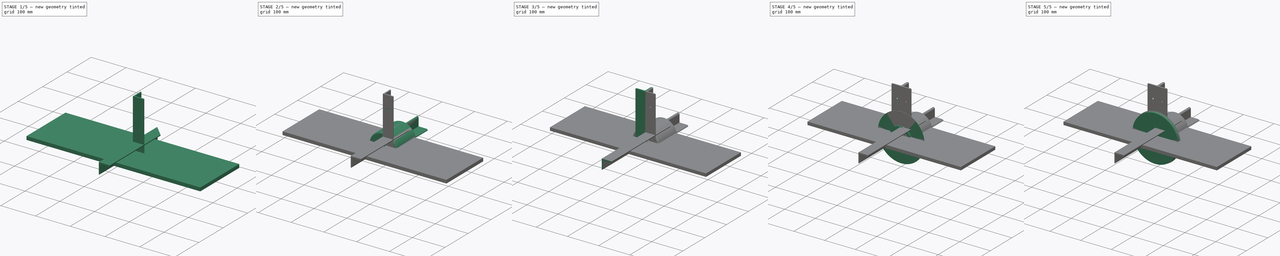
[diagram: build sequence overview — one tinted view per stage of 5, left to right]
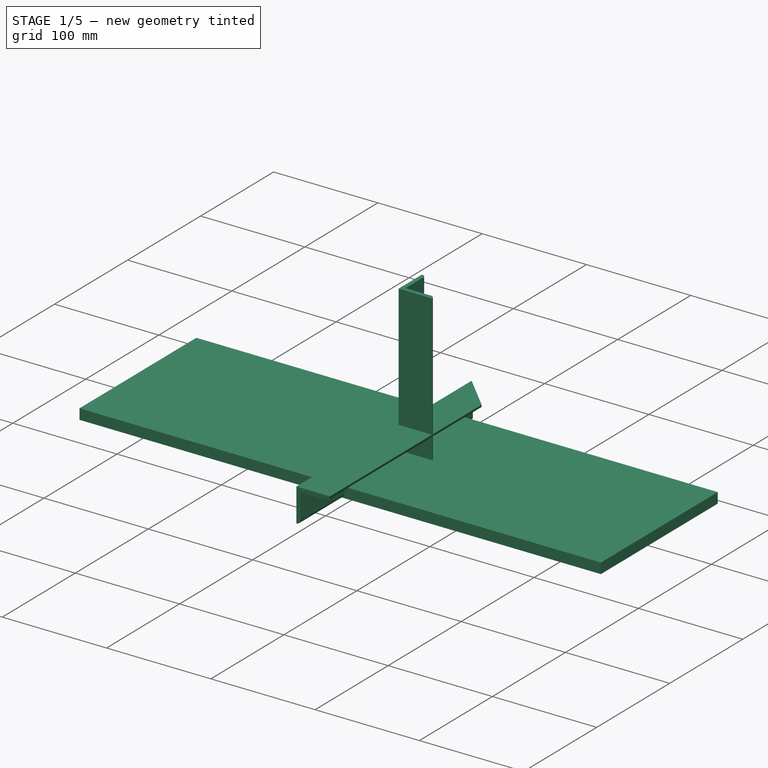
[diagram: stage 1 of 5 — iso view after this stage's code; geometry added in this stage tinted green]
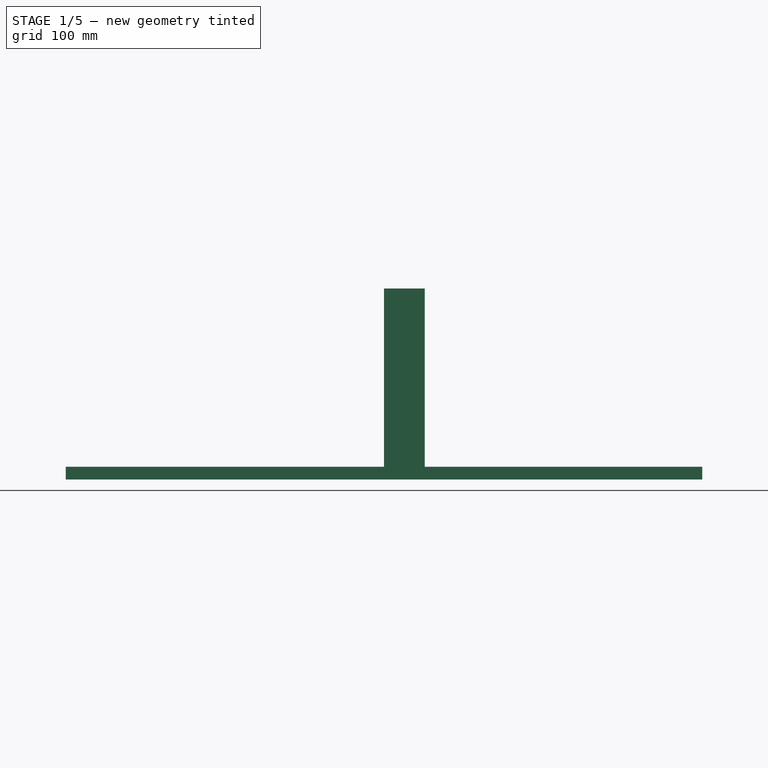
[diagram: stage 1 of 5 — front view after this stage's code; geometry added in this stage tinted green]
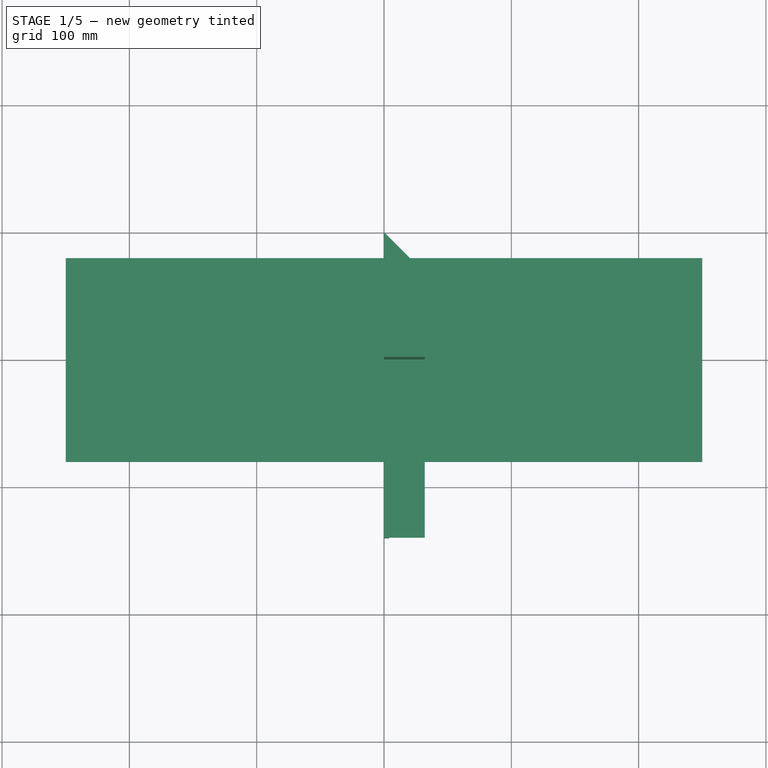
[diagram: stage 1 of 5 — top view after this stage's code; geometry added in this stage tinted green]
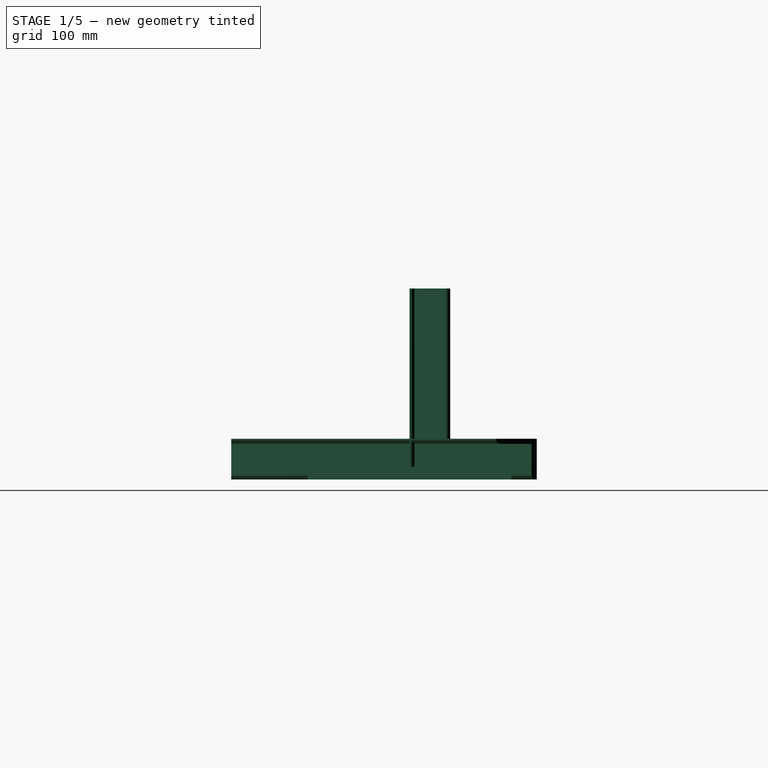
[diagram: stage 1 of 5 — right view after this stage's code; geometry added in this stage tinted green]
FCSTD DOCUMENT  (FreeCAD 0.19R)
Label: sharpener
License: All rights reserved
LicenseURL: http://en.wikipedia.org/wiki/All_rights_reserved
objects: PartDesign::CoordinateSystem×36, Sketcher::SketchObject×29, PartDesign::Pad×23, App::Link×14, PartDesign::Body×12, App::Part×9, PartDesign::Pocket×6, App::DocumentObjectGroup×2, PartDesign::Fillet×2, App::FeaturePython×1
note: 139 computed .brp shape members not serialized (recipe doc carries the construction recipe); baked Part::Feature solids carry a one-line shape summary decoded from their .brp

FEATURE [PartDesign::CoordinateSystem] LCS_Origin
  AttacherType = Attacher::AttachEngine3D
  MapMode = 2
  Support = -> [X_Axis]
FEATURE [App::DocumentObjectGroup] Constraints
FEATURE [App::FeaturePython] Variables  # WARN: FeaturePython — macro-defined, semantics opaque (R4)
FEATURE [PartDesign::CoordinateSystem] LCS_0
  AttacherType = Attacher::AttachEngine3D
  MapMode = 2
  Support = -> [X_Axis001]
FEATURE [PartDesign::Body] Body
  Origin = -> Origin002
FEATURE [Sketcher::SketchObject] Sketch
  FullyConstrained = true
  MapMode = 5
  sketch-geometry (4):
    g0: LineSegment StartX=-250 StartY=80 StartZ=0 EndX=250 EndY=80 EndZ=0
    g1: LineSegment StartX=250 StartY=80 StartZ=0 EndX=250 EndY=-80 EndZ=0
    g2: LineSegment StartX=250 StartY=-80 StartZ=0 EndX=-250 EndY=-80 EndZ=0
    g3: LineSegment StartX=-250 StartY=-80 StartZ=0 EndX=-250 EndY=80 EndZ=0
  constraints (10):
    c: Coincident(g0,g1)
    c: Coincident(g1,g2)
    c: Coincident(g2,g3)
    c: Coincident(g3,g0)
    c: Horizontal(g0)
    c: Vertical(g1)
    c: DistanceX(g0,g0) = 500
    c: DistanceY(g2,g0) = 160
    c: Symmetric(g2,g1,g-2)
    c: Symmetric(g2,g0,g-1)
FEATURE [PartDesign::Pad] Pad
  Direction = (1,1,1)
  Length = 10
  Length2 = 100
  Profile = -> Sketch
  Type = 0
FEATURE [PartDesign::Body] Body001  label="corner_right"
  Origin = -> Origin004
FEATURE [Sketcher::SketchObject] Sketch001
  FullyConstrained = true
  MapMode = 5
  sketch-geometry (6):
    g0: LineSegment StartX=2e-16 StartY=32 StartZ=0 EndX=0 EndY=0 EndZ=0
    g1: LineSegment StartX=0 StartY=0 StartZ=0 EndX=32 EndY=0 EndZ=0
    g2: LineSegment StartX=4 StartY=28 StartZ=0 EndX=4 EndY=4 EndZ=0
    g3: LineSegment StartX=28 StartY=4 StartZ=0 EndX=4 EndY=4 EndZ=0
    g4: ArcOfCircle CenterX=0 CenterY=28 CenterZ=0 NormalX=0 NormalY=0 NormalZ=1 AngleXU=0 Radius=4 StartAngle=-9e-16 EndAngle=1.5708
    g5: ArcOfCircle CenterX=28 CenterY=0 CenterZ=0 NormalX=0 NormalY=0 NormalZ=1 AngleXU=0 Radius=4 StartAngle=0 EndAngle=1.5708
  constraints (19):
    c: PointOnObject(g0,g-2)
    c: Coincident(g0,g-1)
    c: Coincident(g1,g0)
    c: PointOnObject(g1,g-1)
    c: DistanceY(g0,g0) = 32
    c: DistanceX(g0,g1) = 32
    c: Vertical(g2)
    c: Coincident(g3,g2)
    c: Horizontal(g3)
    c: DistanceY(g0,g2) = 4
    c: DistanceX(g0,g2) = 4
    c: DistanceX(g2,g3) = 24
    c: DistanceY(g2,g2) = 24
    c: PointOnObject(g4,g0)
    c: Coincident(g4,g0)
    c: Coincident(g4,g2)
    c: PointOnObject(g5,g1)
    c: Coincident(g5,g1)
    c: Coincident(g5,g3)
FEATURE [PartDesign::Pad] Pad001
  Direction = (1,1,1)
  Length = 150
  Length2 = 100
  Profile = -> Sketch001
  Type = 0
FEATURE [Sketcher::SketchObject] Sketch025
  FullyConstrained = true
  MapMode = 5
  Placement = pos=(0,0,0) rot=(1,0,0;1.5708rad)
  Support = -> [XZ_Plane020]
  sketch-geometry (6):
    g0: LineSegment StartX=-7e-16 StartY=0 StartZ=0 EndX=0 EndY=32 EndZ=0
    g1: LineSegment StartX=0 StartY=32 StartZ=0 EndX=32 EndY=32 EndZ=0
    g2: LineSegment StartX=4 StartY=4 StartZ=0 EndX=4 EndY=28 EndZ=0
    g3: LineSegment StartX=4 StartY=28 StartZ=0 EndX=28 EndY=28 EndZ=0
    g4: ArcOfCircle CenterX=28 CenterY=32 CenterZ=0 NormalX=0 NormalY=0 NormalZ=1 AngleXU=0 Radius=4 StartAngle=4.71239 EndAngle=6.28319
    g5: ArcOfCircle CenterX=0 CenterY=4 CenterZ=0 NormalX=0 NormalY=0 NormalZ=1 AngleXU=0 Radius=4 StartAngle=4.71239 EndAngle=6.28319
  constraints (19):
    c: Coincident(g0,g-1)
    c: PointOnObject(g0,g-2)
    c: Coincident(g1,g0)
    c: Horizontal(g1)
    c: Vertical(g2)
    c: Coincident(g3,g2)
    c: Horizontal(g3)
    c: DistanceX(g0,g2) = 4
    c: DistanceY(g3,g1) = 4
    c: DistanceX(g0,g1) = 32
    c: DistanceY(g0,g0) = 32
    c: DistanceX(g2,g3) = 24
    c: DistanceY(g2,g2) = 24
    c: PointOnObject(g4,g1)
    c: Coincident(g4,g3)
    c: Coincident(g4,g1)
    c: PointOnObject(g5,g0)
    c: Coincident(g5,g2)
    c: Coincident(g5,g0)
FEATURE [PartDesign::Pad] Pad020
  Direction = (1,1,1)
  Length = 140
  Length2 = 100
  Placement = pos=(0,0,0) rot=(1,0,0;1.5708rad)
  Profile = -> Sketch025
  Type = 0
FEATURE [PartDesign::CoordinateSystem] LCS_13
  AttacherType = Attacher::AttachEngine3D
  MapMode = 7
  Placement = pos=(-7e-16,-140,3.11e-14) rot=(0,1,0;3.14159rad)
  Support = -> [Pad020]
FEATURE [PartDesign::CoordinateSystem] LCS_14
  AttacherType = Attacher::AttachEngine3D
  MapMode = 7
  Placement = pos=(-7e-16,-200,4.44e-14) rot=(0,1,0;3.14159rad)
  Support = -> [Pad019]
FEATURE [PartDesign::CoordinateSystem] LCS_15
  AttacherType = Attacher::AttachEngine3D
  MapMode = 7
  Placement = pos=(-7e-16,0,0) rot=(0,1,0;3.14159rad)
  Support = -> [Pad020]
FEATURE [PartDesign::CoordinateSystem] LCS_16
  AttacherType = Attacher::AttachEngine3D
  MapMode = 7
  Placement = pos=(0,-140,32) rot=(0.57735,-0.57735,-0.57735;2.0944rad)
  Support = -> [Pad020]
FEATURE [PartDesign::CoordinateSystem] LCS_17
  AttacherType = Attacher::AttachEngine3D
  MapMode = 7
  Placement = pos=(0,7.1e-15,32) rot=(0.57735,-0.57735,-0.57735;2.0944rad)
  Support = -> [Pad020]
FEATURE [PartDesign::CoordinateSystem] LCS_18
  AttacherType = Attacher::AttachEngine3D
  MapMode = 7
  Placement = pos=(32,7.1e-15,32) rot=(0,0.707107,0.707107;3.14159rad)
  Support = -> [Pad020]
FEATURE [PartDesign::CoordinateSystem] LCS_19
  AttacherType = Attacher::AttachEngine3D
  AttachmentOffset = pos=(0,0,-32) rot=(0,0,1;0rad)
  MapMode = 7
  Placement = pos=(32,-140,32) rot=(0.57735,-0.57735,-0.57735;2.0944rad)
  Support = -> [Pad020]
FEATURE [PartDesign::CoordinateSystem] LCS_20
  AttacherType = Attacher::AttachEngine3D
  MapMode = 7
  Placement = pos=(0,-200,32) rot=(0.57735,-0.57735,-0.57735;2.0944rad)
  Support = -> [Pad019]
FEATURE [PartDesign::CoordinateSystem] LCS_21
  AttacherType = Attacher::AttachEngine3D
  MapMode = 7
  Placement = pos=(0,7.1e-15,32) rot=(0.57735,-0.57735,-0.57735;2.0944rad)
  Support = -> [Pad019]
FEATURE [PartDesign::CoordinateSystem] LCS_22
  AttacherType = Attacher::AttachEngine3D
  MapMode = 7
  Placement = pos=(32,7.1e-15,32) rot=(0,0.707107,0.707107;3.14159rad)
  Support = -> [Pad019]
FEATURE [PartDesign::CoordinateSystem] LCS_23
  AttacherType = Attacher::AttachEngine3D
  MapMode = 7
  Placement = pos=(-7e-16,0,0) rot=(0,1,0;3.14159rad)
  Support = -> [Pad019]
FEATURE [PartDesign::CoordinateSystem] LCS_24
  AttacherType = Attacher::AttachEngine3D
  AttachmentOffset = pos=(0,0,-32) rot=(0,0,1;0rad)
  MapMode = 7
  Placement = pos=(32,-200,32) rot=(0.57735,-0.57735,-0.57735;2.0944rad)
  Support = -> [Pad019]
FEATURE [PartDesign::Body] Body008  label="corner_200"
  Group = -> [Sketch024,Pad019,LCS_14,LCS_20,LCS_21,LCS_22,LCS_23,LCS_24]
  Origin = -> Origin019
  Tip = -> Pad019
FEATURE [App::Link] corner  label="corner001"
  AssemblyType = Asm4EE
  AttachedBy = #LCS_17
  AttachedTo = support001#LCS_12
  AttachmentOffset = pos=(0,0,0) rot=(-0.707107,0,0.707107;3.14159rad)
  LinkPlacement = pos=(70,-64,-78) rot=(0.707107,0.707107,0;3.14159rad)
  LinkedObject = -> Body009
  Placement = pos=(70,-64,-78) rot=(0.707107,0.707107,0;3.14159rad)
  expr: Placement = support001.Placement * LCS_12.Placement * AttachmentOffset * LCS_17.Placement ^ -1
FEATURE [App::Link] corner_200  label="corner_201"
  AssemblyType = Asm4EE
  AttachedBy = #LCS_23
  AttachedTo = corner#LCS_16
  AttachmentOffset = pos=(0,0,0) rot=(1,0,0;4.71239rad)
  LinkPlacement = pos=(-70,-64,-110) rot=(0,0,1;0rad)
  LinkedObject = -> Body008
  Placement = pos=(-70,-64,-110) rot=(0,0,1;0rad)
  expr: Placement = corner.Placement * LCS_16.Placement * AttachmentOffset * LCS_23.Placement ^ -1
FEATURE [App::Link] corner_200001
  AssemblyType = Asm4EE
  AttachedBy = #LCS_22
  AttachedTo = corner#LCS_17
  AttachmentOffset = pos=(0,0,0) rot=(0.707107,-0.707107,0;3.14159rad)
  LinkPlacement = pos=(38,-64,-78) rot=(0,-1,0;4.71239rad)
  LinkedObject = -> Body008
  Placement = pos=(38,-64,-78) rot=(0,-1,0;4.71239rad)
  expr: Placement = corner.Placement * LCS_17.Placement * AttachmentOffset * LCS_22.Placement ^ -1
FEATURE [PartDesign::CoordinateSystem] LCS_25  label="LCS_inner_corner"
  AttacherType = Attacher::AttachEngine3D
  AttachmentOffset = pos=(0,38,-32) rot=(0,0,1;0rad)
  MapMode = 5
  Placement = pos=(0,-38,7.1e-15) rot=(0,0,1;3.14159rad)
  Support = -> [Pad020]
FEATURE [PartDesign::CoordinateSystem] LCS_inner_corner1
  AttacherType = Attacher::AttachEngine3D
  AttachmentOffset = pos=(0,0,-102) rot=(0,0,1;0rad)
  MapMode = 7
  Placement = pos=(-1e-15,-102,2.26e-14) rot=(0,0.707107,0.707107;3.14159rad)
  Support = -> [Pad020]
FEATURE [PartDesign::Body] Body009  label="corner"
  Group = -> [Sketch025,Pad020,LCS_13,LCS_15,LCS_16,LCS_17,LCS_18,LCS_19,LCS_25,LCS_inner_corner1]
  Origin = -> Origin020
  Tip = -> Pad020
FEATURE [App::Link] corner_200002
  AssemblyType = Asm4EE
  AttachedBy = #LCS_23
  AttachedTo = corner#LCS_inner_corner1
  AttachmentOffset = pos=(0,0,0) rot=(0.707107,-0.707107,0;3.14159rad)
  LinkPlacement = pos=(-32,-64,-78) rot=(0,1,0;1.5708rad)
  LinkedObject = -> Body008
  Placement = pos=(-32,-64,-78) rot=(0,1,0;1.5708rad)
  expr: Placement = corner.Placement * LCS_inner_corner1.Placement * AttachmentOffset * LCS_23.Placement ^ -1
FEATURE [App::Link] corner_200003
  AssemblyType = Asm4EE
  AttachedBy = #LCS_22
  AttachedTo = corner#LCS_25
  AttachmentOffset = pos=(0,0,0) rot=(0.57735,0.57735,-0.57735;4.18879rad)
  LinkPlacement = pos=(3.55e-14,-64,-110) rot=(0,0,1;0rad)
  LinkedObject = -> Body008
  Placement = pos=(3.55e-14,-64,-110) rot=(0,0,1;0rad)
  expr: Placement = corner.Placement * LCS_25.Placement * AttachmentOffset * LCS_22.Placement ^ -1
FEATURE [Sketcher::SketchObject] Sketch026
  FullyConstrained = true
  MapMode = 5
  Placement = pos=(0,0,0) rot=(1,0,0;1.5708rad)
  Support = -> [XZ_Plane021]
  sketch-geometry (6):
    g0: LineSegment StartX=-7e-16 StartY=0 StartZ=0 EndX=0 EndY=32 EndZ=0
    g1: LineSegment StartX=0 StartY=32 StartZ=0 EndX=32 EndY=32 EndZ=0
    g2: LineSegment StartX=4 StartY=4 StartZ=0 EndX=4 EndY=28 EndZ=0
    g3: LineSegment StartX=4 StartY=28 StartZ=0 EndX=28 EndY=28 EndZ=0
    g4: ArcOfCircle CenterX=28 CenterY=32 CenterZ=0 NormalX=0 NormalY=0 NormalZ=1 AngleXU=0 Radius=4 StartAngle=4.71239 EndAngle=6.28319
    g5: ArcOfCircle CenterX=0 CenterY=4 CenterZ=0 NormalX=0 NormalY=0 NormalZ=1 AngleXU=0 Radius=4 StartAngle=4.71239 EndAngle=6.28319
  constraints (19):
    c: Coincident(g0,g-1)
    c: PointOnObject(g0,g-2)
    c: Coincident(g1,g0)
    c: Horizontal(g1)
    c: Vertical(g2)
    c: Coincident(g3,g2)
    c: Horizontal(g3)
    c: DistanceX(g0,g2) = 4
    c: DistanceY(g3,g1) = 4
    c: DistanceX(g0,g1) = 32
    c: DistanceY(g0,g0) = 32
    c: DistanceX(g2,g3) = 24
    c: DistanceY(g2,g2) = 24
    c: PointOnObject(g4,g1)
    c: Coincident(g4,g3)
    c: Coincident(g4,g1)
    c: PointOnObject(g5,g0)
    c: Coincident(g5,g2)
    c: Coincident(g5,g0)
FEATURE [PartDesign::Pad] Pad021
  Direction = (1,1,1)
  Length = 20
  Length2 = 100
  Placement = pos=(0,0,0) rot=(1,0,0;1.5708rad)
  Profile = -> Sketch026
  Type = 0
FEATURE [PartDesign::CoordinateSystem] LCS_26
  AttacherType = Attacher::AttachEngine3D
  AttachmentOffset = pos=(0,0,-10) rot=(0,0,1;0rad)
  MapMode = 7
  Placement = pos=(0,-10,32) rot=(0,0.707107,0.707107;3.14159rad)
  Support = -> [Pad021]
FEATURE [PartDesign::Body] Body010  label="corner_204"
  Group = -> [Sketch026,Pad021,LCS_26]
  Origin = -> Origin021
  Tip = -> Pad021
FEATURE [App::Link] corner_204  label="corner_200004"
  AssemblyType = Asm4EE
  AttachedBy = #LCS_26
  AttachedTo = corner_200003#LCS_14
  AttachmentOffset = pos=(0,0,0) rot=(0,1,0;4.71239rad)
  LinkPlacement = pos=(10,-296,-110) rot=(0.57735,0.57735,0.57735;4.18879rad)
  LinkedObject = -> Body010
  Placement = pos=(10,-296,-110) rot=(0.57735,0.57735,0.57735;4.18879rad)
  expr: Placement = corner_200003.Placement * LCS_14.Placement * AttachmentOffset * LCS_26.Placement ^ -1
FEATURE [App::Part] Model
  Configuration = 0
  Group = -> [LCS_Origin,Constraints,Variables,motor001,right_bracket,left_bracket,adapter,platform,disc,nut,support001,corner,corner_200,corner_200001,corner_200002,corner_200003,corner_204]
  Origin = -> Origin
  Type = Assembly4 Model
FEATURE [Sketcher::SketchObject] Sketch027
  FullyConstrained = true
  MapMode = 5
  Placement = pos=(0,0,0) rot=(1,0,0;1.5708rad)
  Support = -> [XZ_Plane022]
  sketch-geometry (6):
    g0: LineSegment StartX=-7e-16 StartY=0 StartZ=0 EndX=0 EndY=32 EndZ=0
    g1: LineSegment StartX=0 StartY=32 StartZ=0 EndX=32 EndY=32 EndZ=0
    g2: LineSegment StartX=4 StartY=4 StartZ=0 EndX=4 EndY=28 EndZ=0
    g3: LineSegment StartX=4 StartY=28 StartZ=0 EndX=28 EndY=28 EndZ=0
    g4: ArcOfCircle CenterX=28 CenterY=32 CenterZ=0 NormalX=0 NormalY=0 NormalZ=1 AngleXU=0 Radius=4 StartAngle=4.71239 EndAngle=6.28319
    g5: ArcOfCircle CenterX=0 CenterY=4 CenterZ=0 NormalX=0 NormalY=0 NormalZ=1 AngleXU=0 Radius=4 StartAngle=4.71239 EndAngle=6.28319
  constraints (19):
    c: Coincident(g0,g-1)
    c: PointOnObject(g0,g-2)
    c: Coincident(g1,g0)
    c: Horizontal(g1)
    c: Vertical(g2)
    c: Coincident(g3,g2)
    c: Horizontal(g3)
    c: DistanceX(g0,g2) = 4
    c: DistanceY(g3,g1) = 4
    c: DistanceX(g0,g1) = 32
    c: DistanceY(g0,g0) = 32
    c: DistanceX(g2,g3) = 24
    c: DistanceY(g2,g2) = 24
    c: PointOnObject(g4,g1)
    c: Coincident(g4,g3)
    c: Coincident(g4,g1)
    c: PointOnObject(g5,g0)
    c: Coincident(g5,g2)
    c: Coincident(g5,g0)
FEATURE [PartDesign::Pad] Pad022
  Direction = (1,1,1)
  Length = 200
  Length2 = 100
  Midplane = true
  Placement = pos=(0,0,0) rot=(1,0,0;1.5708rad)
  Profile = -> Sketch027
  Type = 0
FEATURE [Sketcher::SketchObject] Sketch028
  ExternalGeometry = -> [Pad022]
  FullyConstrained = true
  MapMode = 5
  Placement = pos=(0,7.1e-15,32) rot=(0,0,1;3.14159rad)
  Support = -> [Pad022]
  sketch-geometry (6):
    g0: LineSegment StartX=0 StartY=100 StartZ=0 EndX=-32 EndY=100 EndZ=0
    g1: LineSegment StartX=-32 StartY=68 StartZ=0 EndX=-32 EndY=100 EndZ=0
    g2: LineSegment StartX=-32 StartY=68 StartZ=0 EndX=0 EndY=100 EndZ=0
    g3: LineSegment StartX=0 StartY=-100 StartZ=0 EndX=-32 EndY=-100 EndZ=0
    g4: LineSegment StartX=-32 StartY=-100 StartZ=0 EndX=-32 EndY=-68 EndZ=0
    g5: LineSegment StartX=0 StartY=-100 StartZ=0 EndX=-32 EndY=-68 EndZ=0
  constraints (14):
    c: Coincident(g0,g-3)
    c: Coincident(g0,g-3)
    c: Coincident(g1,g0)
    c: Vertical(g1)
    c: Coincident(g2,g1)
    c: Coincident(g2,g0)
    c: DistanceY(g2,g0) = 32
    c: Coincident(g3,g-4)
    c: Coincident(g3,g-4)
    c: Coincident(g4,g3)
    c: Vertical(g4)
    c: Coincident(g5,g3)
    c: Coincident(g5,g4)
    c: DistanceY(g3,g4) = 32
FEATURE [PartDesign::Pocket] Pocket005
  BaseFeature = -> Pad022
  Length = 32
  Length2 = 100
  Placement = pos=(0,0,0) rot=(1,0,0;1.5708rad)
  Profile = -> Sketch028
  Type = 0
FEATURE [PartDesign::CoordinateSystem] LCS_27
  AttacherType = Attacher::AttachEngine3D
  MapMode = 45
  Placement = pos=(-4e-16,-100,16) rot=(0,0,1;0rad)
  Support = -> [Pocket005]
FEATURE [PartDesign::CoordinateSystem] LCS_28
  AttacherType = Attacher::AttachEngine3D
  MapMode = 45
  Placement = pos=(-4e-16,100,16) rot=(0,0,1;0rad)
  Support = -> [Pocket005]
FEATURE [PartDesign::Body] Body011  label="corner_200005"
  Group = -> [Sketch027,Pad022,Sketch028,Pocket005,LCS_27,LCS_28]
  Origin = -> Origin022
  Tip = -> Pocket005
FEATURE [App::DocumentObjectGroup] Parts
  Group = -> [support,Part,Part001,motor,Part002,Part003,Part004,Part005,Body008,Body009,Body010,Body011]
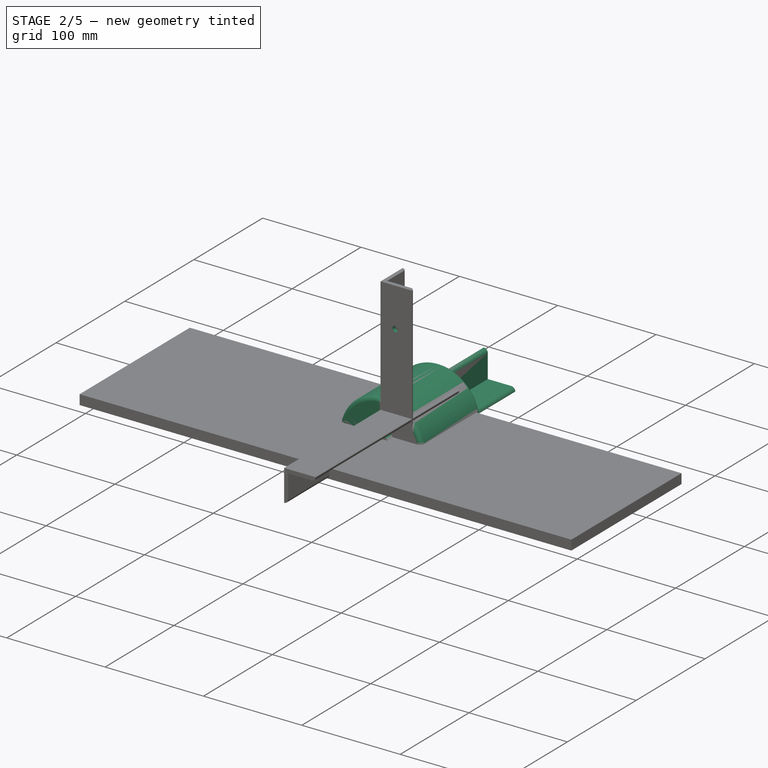
[diagram: stage 2 of 5 — iso view after this stage's code; geometry added in this stage tinted green]
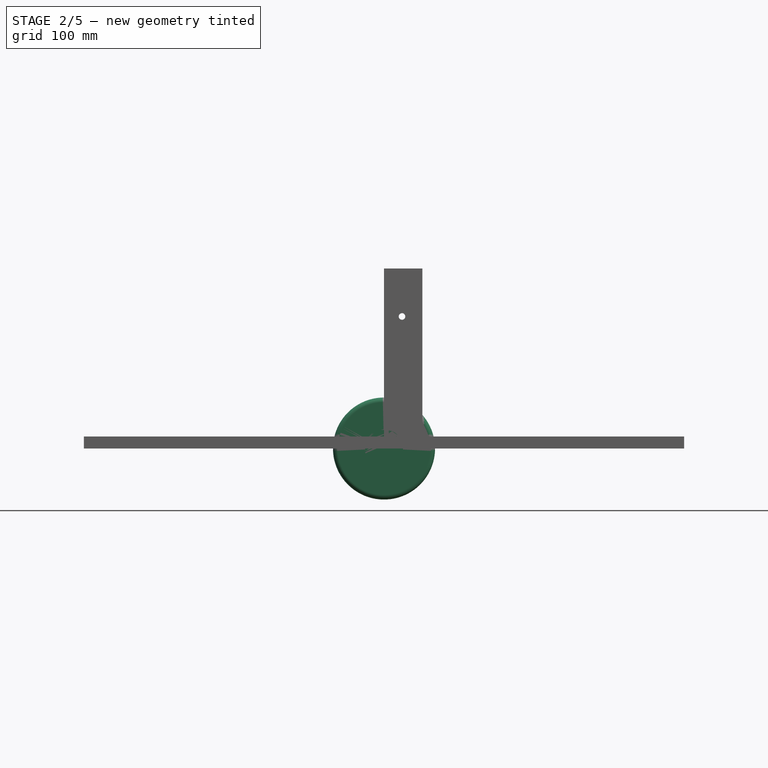
[diagram: stage 2 of 5 — front view after this stage's code; geometry added in this stage tinted green]
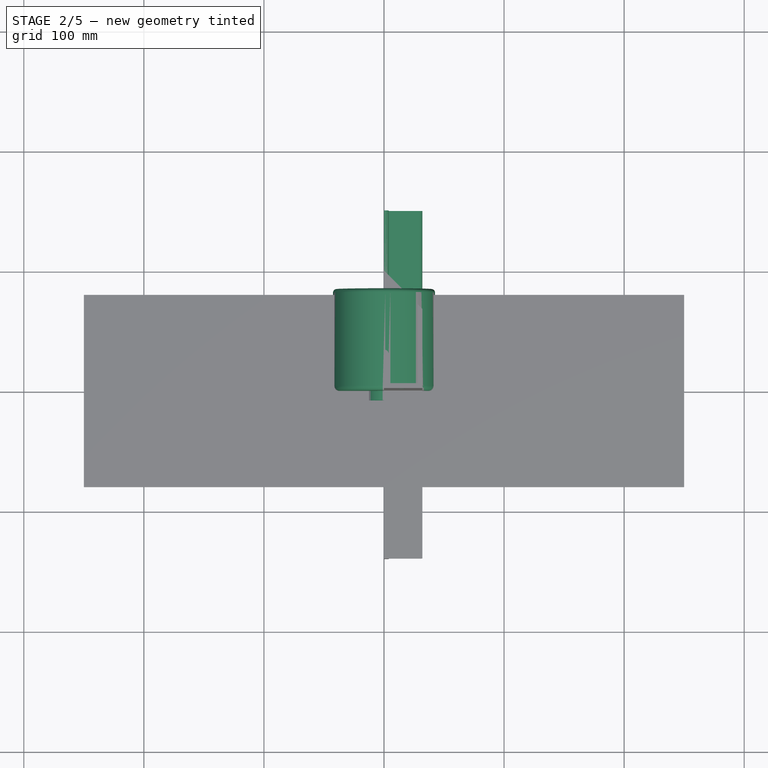
[diagram: stage 2 of 5 — top view after this stage's code; geometry added in this stage tinted green]
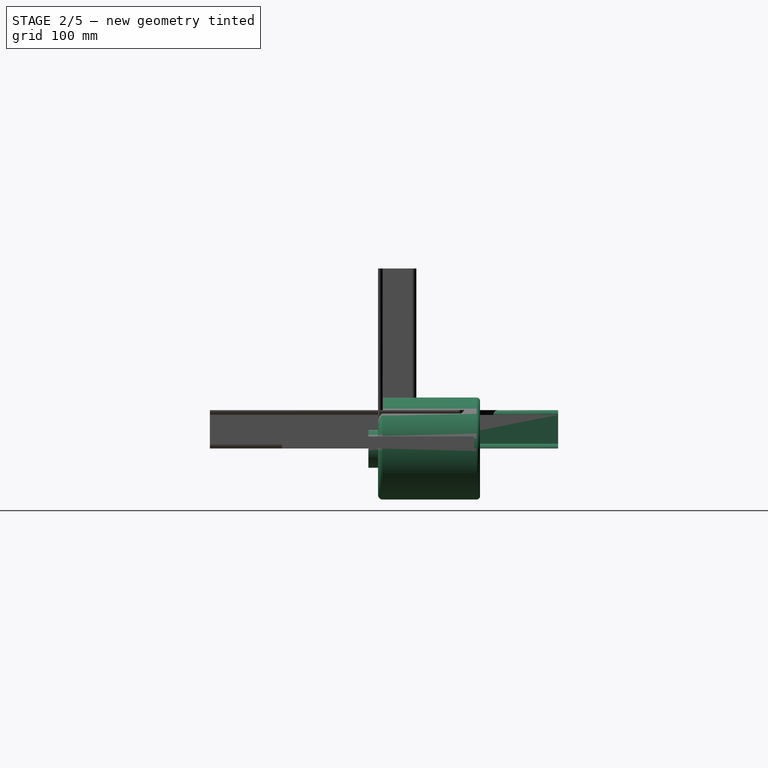
[diagram: stage 2 of 5 — right view after this stage's code; geometry added in this stage tinted green]
FEATURE [Sketcher::SketchObject] Sketch002
  FullyConstrained = true
  MapMode = 5
  Placement = pos=(0,0,0) rot=(1,0,0;1.5708rad)
  Support = -> [Pad001]
  sketch-geometry (6):
    g0: LineSegment StartX=2e-16 StartY=32 StartZ=0 EndX=0 EndY=0 EndZ=0
    g1: LineSegment StartX=0 StartY=0 StartZ=0 EndX=32 EndY=0 EndZ=0
    g2: LineSegment StartX=28 StartY=4 StartZ=0 EndX=4 EndY=4 EndZ=0
    g3: LineSegment StartX=4 StartY=4 StartZ=0 EndX=4 EndY=28 EndZ=0
    g4: ArcOfCircle CenterX=0 CenterY=28 CenterZ=0 NormalX=0 NormalY=0 NormalZ=1 AngleXU=0 Radius=4 StartAngle=0 EndAngle=1.5708
    g5: ArcOfCircle CenterX=28 CenterY=0 CenterZ=0 NormalX=0 NormalY=0 NormalZ=1 AngleXU=0 Radius=4 StartAngle=-9e-16 EndAngle=1.5708
  constraints (19):
    c: PointOnObject(g0,g-2)
    c: Coincident(g0,g-1)
    c: Coincident(g1,g0)
    c: PointOnObject(g1,g-1)
    c: Horizontal(g2)
    c: Coincident(g3,g2)
    c: Vertical(g3)
    c: DistanceY(g0,g0) = 32
    c: DistanceX(g0,g1) = 32
    c: DistanceX(g0,g2) = 4
    c: DistanceY(g0,g2) = 4
    c: DistanceY(g2,g3) = 24
    c: DistanceX(g2,g2) = 24
    c: PointOnObject(g4,g0)
    c: Coincident(g4,g0)
    c: Coincident(g4,g3)
    c: PointOnObject(g5,g1)
    c: Coincident(g5,g2)
    c: Coincident(g5,g1)
FEATURE [PartDesign::Pad] Pad002
  Direction = (1,1,1)
  Length = 150
  Length2 = 100
  Profile = -> Sketch002
  Reversed = true
  Type = 0
FEATURE [PartDesign::CoordinateSystem] LCS_0001
  AttacherType = Attacher::AttachEngine3D
  MapMode = 2
  Support = -> [X_Axis007]
FEATURE [Sketcher::SketchObject] Sketch005
  FullyConstrained = true
  MapMode = 5
  Placement = pos=(0,0,0) rot=(1,0,0;1.5708rad)
  sketch-geometry (1):
    g0: Circle CenterX=0 CenterY=0 CenterZ=0 NormalX=0 NormalY=0 NormalZ=1 AngleXU=0 Radius=42.5
  constraints (2):
    c: Coincident(g0,g-1)
    c: Diameter(g0) = 85
FEATURE [PartDesign::Body] Body003
  Origin = -> Origin008
FEATURE [PartDesign::Pad] Pad005
  Direction = (1,1,1)
  Length = 85
  Length2 = 100
  Placement = pos=(0,0,0) rot=(1,0,0;1.5708rad)
  Profile = -> Sketch005
  Reversed = true
  Type = 0
FEATURE [PartDesign::Fillet] Fillet
  Base = -> Pad005 [Edge2]
  Placement = pos=(0,0,0) rot=(1,0,0;1.5708rad)
  Radius = 4
  SupportTransform = false
FEATURE [PartDesign::Fillet] Fillet001
  Base = -> Fillet [Edge3]
  Placement = pos=(0,0,0) rot=(1,0,0;1.5708rad)
  Radius = 3
  SupportTransform = false
FEATURE [Sketcher::SketchObject] Sketch006
  FullyConstrained = true
  MapMode = 5
  Placement = pos=(0,0,0) rot=(1,0,0;1.5708rad)
  Support = -> [Fillet001]
  sketch-geometry (1):
    g0: Circle CenterX=0 CenterY=0 CenterZ=0 NormalX=0 NormalY=0 NormalZ=1 AngleXU=0 Radius=16
  constraints (2):
    c: Coincident(g0,g-1)
    c: Diameter(g0) = 32
FEATURE [PartDesign::Pad] Pad006
  Direction = (1,1,1)
  Length = 8
  Length2 = 100
  Placement = pos=(0,0,0) rot=(1,0,0;1.5708rad)
  Profile = -> Sketch006
  Type = 0
FEATURE [PartDesign::CoordinateSystem] LCS_fastening1
  AttacherType = Attacher::AttachEngine3D
  MapMode = 11
  Placement = pos=(35,0,0) rot=(0.57735,-0.57735,0.57735;2.0944rad)
FEATURE [PartDesign::CoordinateSystem] LCS_fastening2
  AttacherType = Attacher::AttachEngine3D
  MapMode = 11
  Placement = pos=(-35,0,0) rot=(0.57735,-0.57735,0.57735;2.0944rad)
FEATURE [Sketcher::SketchObject] Sketch011
  ExternalGeometry = -> [Pad002]
  FullyConstrained = true
  MapMode = 5
  Placement = pos=(0,0,0) rot=(1,0,0;1.5708rad)
  Support = -> [Pad002]
  sketch-geometry (1):
    g0: Circle CenterX=15 CenterY=110 CenterZ=0 NormalX=0 NormalY=0 NormalZ=1 AngleXU=0 Radius=2.75
  constraints (3):
    c: Diameter(g0) = 5.5
    c: DistanceX(g-1,g0) = 15
    c: DistanceY(g0,g-3) = 40
FEATURE [PartDesign::Pocket] Pocket
  Length = 5
  Length2 = 100
  Profile = -> Sketch011
  Type = 1
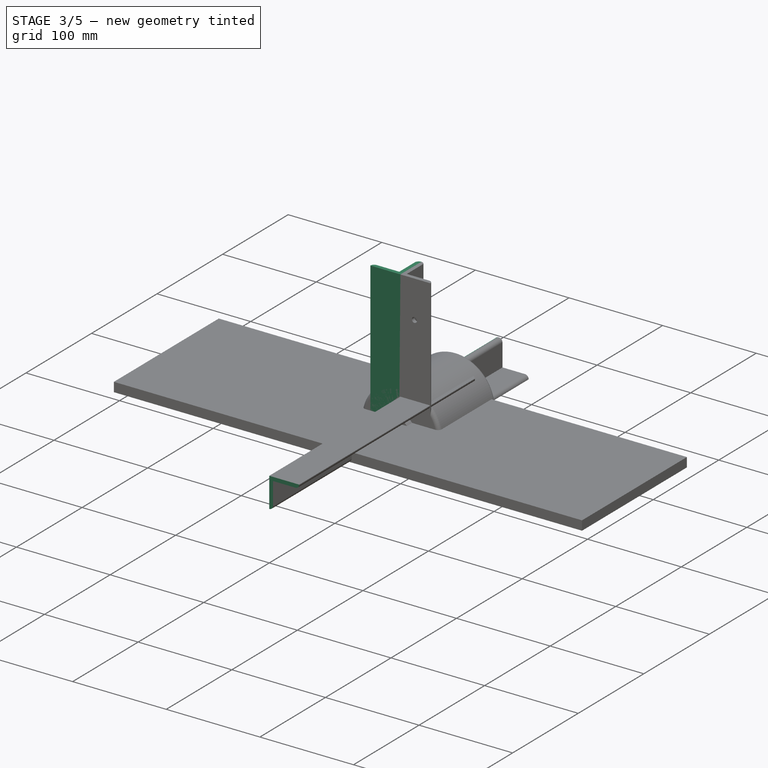
[diagram: stage 3 of 5 — iso view after this stage's code; geometry added in this stage tinted green]
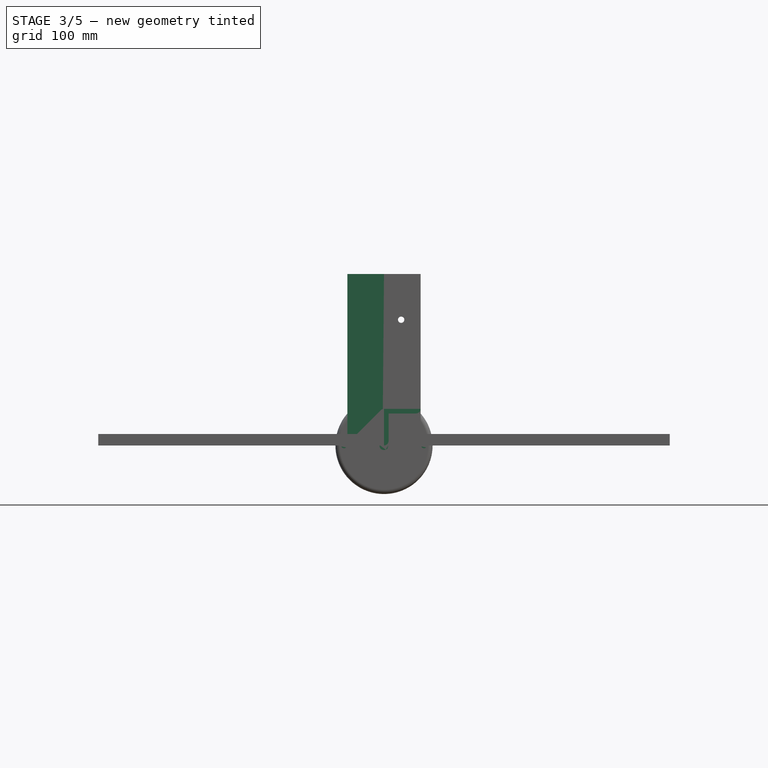
[diagram: stage 3 of 5 — front view after this stage's code; geometry added in this stage tinted green]
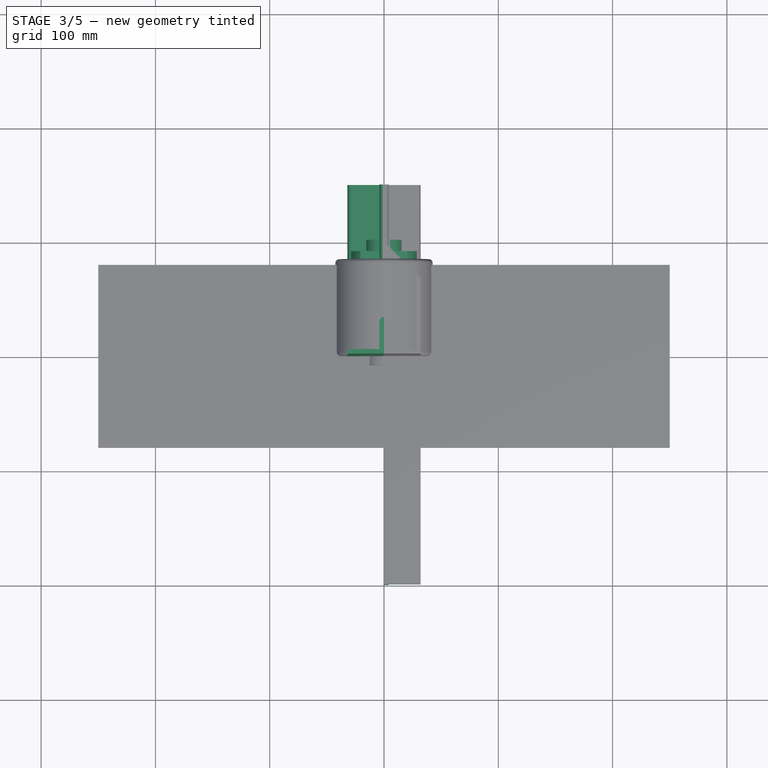
[diagram: stage 3 of 5 — top view after this stage's code; geometry added in this stage tinted green]
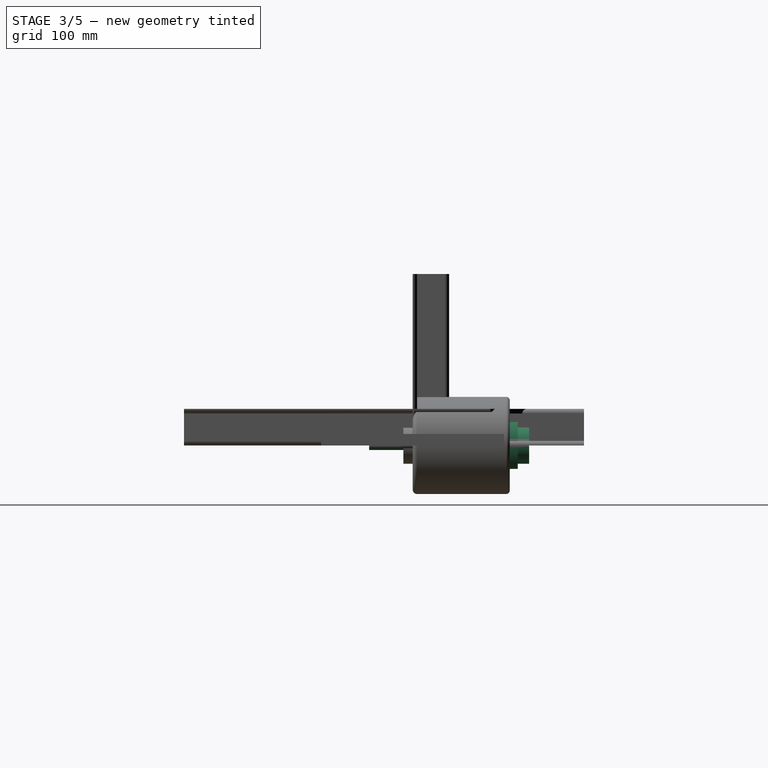
[diagram: stage 3 of 5 — right view after this stage's code; geometry added in this stage tinted green]
FEATURE [PartDesign::Body] Body002  label="corner_left"
  Origin = -> Origin006
FEATURE [Sketcher::SketchObject] Sketch003
  FullyConstrained = true
  MapMode = 5
  Support = -> [XY_Plane006]
  sketch-geometry (6):
    g0: LineSegment StartX=2e-16 StartY=32 StartZ=0 EndX=0 EndY=0 EndZ=0
    g1: LineSegment StartX=0 StartY=0 StartZ=0 EndX=-32 EndY=5e-16 EndZ=0
    g2: LineSegment StartX=-4 StartY=28 StartZ=0 EndX=-4 EndY=4 EndZ=0
    g3: LineSegment StartX=-4 StartY=4 StartZ=0 EndX=-28 EndY=4 EndZ=0
    g4: ArcOfCircle CenterX=0 CenterY=28 CenterZ=0 NormalX=0 NormalY=0 NormalZ=1 AngleXU=0 Radius=4 StartAngle=1.5708 EndAngle=3.14159
    g5: ArcOfCircle CenterX=-28 CenterY=0 CenterZ=0 NormalX=0 NormalY=0 NormalZ=1 AngleXU=0 Radius=4 StartAngle=1.5708 EndAngle=3.14159
  constraints (19):
    c: PointOnObject(g0,g-2)
    c: Coincident(g0,g-1)
    c: Coincident(g1,g0)
    c: PointOnObject(g1,g-1)
    c: Vertical(g2)
    c: Coincident(g3,g2)
    c: Horizontal(g3)
    c: DistanceX(g1,g0) = 32
    c: DistanceY(g0,g0) = 32
    c: DistanceX(g3,g2) = 24
    c: DistanceY(g2,g2) = 24
    c: DistanceX(g2,g0) = 4
    c: DistanceY(g0,g2) = 4
    c: PointOnObject(g4,g0)
    c: Coincident(g4,g2)
    c: Coincident(g4,g0)
    c: PointOnObject(g5,g1)
    c: Coincident(g5,g3)
    c: Coincident(g5,g1)
FEATURE [PartDesign::Pad] Pad003
  Direction = (1,1,1)
  Length = 150
  Length2 = 100
  Profile = -> Sketch003
  Type = 0
FEATURE [Sketcher::SketchObject] Sketch004
  FullyConstrained = true
  MapMode = 5
  Placement = pos=(0,0,0) rot=(1,0,0;1.5708rad)
  Support = -> [Pad003]
  sketch-geometry (6):
    g0: LineSegment StartX=-32 StartY=5e-16 StartZ=0 EndX=0 EndY=0 EndZ=0
    g1: LineSegment StartX=0 StartY=0 StartZ=0 EndX=2e-16 EndY=32 EndZ=0
    g2: LineSegment StartX=-28 StartY=4 StartZ=0 EndX=-4 EndY=4 EndZ=0
    g3: LineSegment StartX=-4 StartY=4 StartZ=0 EndX=-4 EndY=28 EndZ=0
    g4: ArcOfCircle CenterX=-28 CenterY=0 CenterZ=0 NormalX=0 NormalY=0 NormalZ=1 AngleXU=0 Radius=4 StartAngle=1.5708 EndAngle=3.14159
    g5: ArcOfCircle CenterX=0 CenterY=28 CenterZ=0 NormalX=0 NormalY=0 NormalZ=1 AngleXU=0 Radius=4 StartAngle=1.5708 EndAngle=3.14159
  constraints (19):
    c: PointOnObject(g0,g-1)
    c: Coincident(g0,g-1)
    c: Coincident(g1,g0)
    c: PointOnObject(g1,g-2)
    c: Horizontal(g2)
    c: Coincident(g3,g2)
    c: Vertical(g3)
    c: DistanceX(g0,g0) = 32
    c: DistanceX(g2,g0) = 4
    c: DistanceY(g0,g2) = 4
    c: DistanceY(g0,g1) = 32
    c: DistanceY(g2,g3) = 24
    c: DistanceX(g2,g2) = 24
    c: PointOnObject(g4,g0)
    c: Coincident(g4,g2)
    c: Coincident(g4,g0)
    c: PointOnObject(g5,g1)
    c: Coincident(g5,g1)
    c: Coincident(g5,g3)
FEATURE [PartDesign::Pad] Pad004
  Direction = (1,1,1)
  Length = 150
  Length2 = 100
  Profile = -> Sketch004
  Reversed = true
  Type = 0
FEATURE [Sketcher::SketchObject] Sketch007
  FullyConstrained = true
  MapMode = 5
  Placement = pos=(0,-8,3.5e-15) rot=(1,0,0;1.5708rad)
  Support = -> [Pad006]
  sketch-geometry (1):
    g0: Circle CenterX=0 CenterY=0 CenterZ=0 NormalX=0 NormalY=0 NormalZ=1 AngleXU=0 Radius=4
  constraints (2):
    c: Coincident(g0,g-1)
    c: Diameter(g0) = 8
FEATURE [PartDesign::Pad] Pad007
  Direction = (1,1,1)
  Length = 30
  Length2 = 100
  Placement = pos=(0,0,0) rot=(1,0,0;1.5708rad)
  Profile = -> Sketch007
  Type = 0
FEATURE [Sketcher::SketchObject] Sketch008
  FullyConstrained = true
  MapMode = 5
  Placement = pos=(0,0,0) rot=(1,0,0;1.5708rad)
  Support = -> [Pad007]
  sketch-geometry (2):
    g0: Circle CenterX=-35 CenterY=0 CenterZ=0 NormalX=0 NormalY=0 NormalZ=1 AngleXU=0 Radius=2.5
    g1: Circle CenterX=35 CenterY=0 CenterZ=0 NormalX=0 NormalY=0 NormalZ=1 AngleXU=0 Radius=2.5
  constraints (6):
    c: PointOnObject(g0,g-1)
    c: PointOnObject(g1,g-1)
    c: Equal(g1,g0)
    c: Diameter(g1) = 5
    c: DistanceX(g-1,g1) = 35
    c: DistanceX(g0,g-1) = 35
FEATURE [PartDesign::Pad] Pad008
  Direction = (1,1,1)
  Length = 10
  Length2 = 100
  Placement = pos=(0,0,0) rot=(1,0,0;1.5708rad)
  Profile = -> Sketch008
  Type = 0
FEATURE [Sketcher::SketchObject] Sketch009
  FullyConstrained = true
  MapMode = 5
  Placement = pos=(0,85,-1.87e-14) rot=(-1,0,0;1.5708rad)
  Support = -> [Pad008]
  sketch-geometry (4):
    g0: LineSegment StartX=-20.5122 StartY=20.5 StartZ=0 EndX=20.5122 EndY=20.5 EndZ=0
    g1: LineSegment StartX=-20.5122 StartY=-20.5 StartZ=0 EndX=20.5122 EndY=-20.5 EndZ=0
    g2: ArcOfCircle CenterX=0 CenterY=0 CenterZ=0 NormalX=0 NormalY=0 NormalZ=1 AngleXU=0 Radius=29 StartAngle=2.35649 EndAngle=3.92669
    g3: ArcOfCircle CenterX=0 CenterY=0 CenterZ=0 NormalX=0 NormalY=0 NormalZ=1 AngleXU=0 Radius=29 StartAngle=5.49808 EndAngle=7.06829
  constraints (11):
    c: Symmetric(g1,g1,g-2)
    c: Symmetric(g0,g0,g-2)
    c: Coincident(g2,g-1)
    c: Diameter(g3) = 58
    c: DistanceY(g1,g0) = 41
    c: Symmetric(g1,g0,g-1)
    c: Coincident(g3,g1)
    c: Coincident(g0,g3)
    c: Coincident(g2,g0)
    c: Coincident(g2,g1)
    c: Coincident(g3,g2)
FEATURE [PartDesign::Pad] Pad009
  Direction = (1,1,1)
  Length = 7
  Length2 = 100
  Placement = pos=(0,0,0) rot=(1,0,0;1.5708rad)
  Profile = -> Sketch009
  Type = 0
FEATURE [Sketcher::SketchObject] Sketch010
  FullyConstrained = true
  MapMode = 5
  Placement = pos=(0,92,-5.98e-14) rot=(-1,0,0;1.5708rad)
  Support = -> [Pad009]
  sketch-geometry (1):
    g0: Circle CenterX=0 CenterY=0 CenterZ=0 NormalX=0 NormalY=0 NormalZ=1 AngleXU=0 Radius=16
  constraints (2):
    c: Coincident(g0,g-1)
    c: Diameter(g0) = 32
FEATURE [PartDesign::Pad] Pad010
  Direction = (1,1,1)
  Length = 10
  Length2 = 100
  Placement = pos=(0,0,0) rot=(1,0,0;1.5708rad)
  Profile = -> Sketch010
  Type = 0
FEATURE [PartDesign::CoordinateSystem] LCS_7
  AttacherType = Attacher::AttachEngine3D
  MapMode = 11
  Placement = pos=(0,0,0) rot=(0.57735,-0.57735,0.57735;2.0944rad)
  Support = -> [Pad018]
FEATURE [App::Part] Part005  label="nut"
  Group = -> [Body007,Pad017,Pad018,Sketch022,Sketch023,LCS_7]
  Origin = -> Origin017
FEATURE [PartDesign::CoordinateSystem] LCS_8
  AttacherType = Attacher::AttachEngine3D
  MapMode = 11
  Placement = pos=(0,-1,9e-16) rot=(0.57735,-0.57735,-0.57735;4.18879rad)
  Support = -> [Pocket004]
FEATURE [App::Part] Part004  label="disc"
  Group = -> [Body006,Sketch020,Pocket004,Sketch021,Pad016,LCS_5,LCS_8]
  Origin = -> Origin015
FEATURE [App::Link] nut  label="nut001"
  AssemblyType = Asm4EE
  AttachedBy = #LCS_7
  AttachedTo = disc#LCS_8
  AttachmentOffset = pos=(0,0,0) rot=(1,0,0;3.14159rad)
  LinkPlacement = pos=(-1.03e-14,-51,3e-15) rot=(0,-1,0;3.14159rad)
  LinkedObject = -> Part005
  Placement = pos=(-1.03e-14,-51,3e-15) rot=(0,-1,0;3.14159rad)
  expr: Placement = disc.Placement * LCS_8.Placement * AttachmentOffset * LCS_7.Placement ^ -1
FEATURE [PartDesign::CoordinateSystem] LCS_9
  AttacherType = Attacher::AttachEngine3D
  MapMode = 7
  Placement = pos=(0,150,-3.3e-14) rot=(0.57735,-0.57735,-0.57735;2.0944rad)
  Support = -> [Pocket]
FEATURE [App::Part] Part  label="right_bracket"
  Group = -> [Body001,Sketch001,Pad001,Sketch002,Pad002,Sketch011,Pocket,LCS_hole1,LCS_9]
  Origin = -> Origin003
FEATURE [PartDesign::CoordinateSystem] LCS_10
  AttacherType = Attacher::AttachEngine3D
  MapMode = 7
  Placement = pos=(-32,150,-3.25e-14) rot=(0.57735,-0.57735,-0.57735;2.0944rad)
  Support = -> [Pocket001]
FEATURE [App::Part] Part001  label="left_bracket"
  Group = -> [Body002,Pocket001,Sketch003,Pad003,Sketch004,Pad004,Sketch012,LCS_hole,LCS_10]
  Origin = -> Origin005
FEATURE [App::Link] support001
  AssemblyType = Asm4EE
  AttachedBy = #LCS_11
  AttachedTo = right_bracket#LCS_9
  LinkPlacement = pos=(7.1e-15,-94,-120) rot=(0,0,-1;4.71239rad)
  LinkedObject = -> support
  Placement = pos=(7.1e-15,-94,-120) rot=(0,0,-1;4.71239rad)
  expr: Placement = right_bracket.Placement * LCS_9.Placement * AttachmentOffset * LCS_11.Placement ^ -1
FEATURE [PartDesign::CoordinateSystem] LCS_11
  AttacherType = Attacher::AttachEngine3D
  AttachmentOffset = pos=(10,0,-30) rot=(0,0,1;0rad)
  MapMode = 7
  Placement = pos=(240,50,10) rot=(0,0.707107,0.707107;3.14159rad)
  Support = -> [Pad]
FEATURE [PartDesign::CoordinateSystem] LCS_12
  AttacherType = Attacher::AttachEngine3D
  AttachmentOffset = pos=(280,0,-10) rot=(0,0,1;0rad)
  MapMode = 7
  Placement = pos=(30,-70,10) rot=(1,0,0;1.5708rad)
  Support = -> [Pad]
FEATURE [App::Part] support
  Group = -> [LCS_0,Body,Pad,Sketch,LCS_11,LCS_12]
  Origin = -> Origin001
FEATURE [Sketcher::SketchObject] Sketch024
  FullyConstrained = true
  MapMode = 5
  Placement = pos=(0,0,0) rot=(1,0,0;1.5708rad)
  Support = -> [XZ_Plane019]
  sketch-geometry (6):
    g0: LineSegment StartX=-7e-16 StartY=0 StartZ=0 EndX=0 EndY=32 EndZ=0
    g1: LineSegment StartX=0 StartY=32 StartZ=0 EndX=32 EndY=32 EndZ=0
    g2: LineSegment StartX=4 StartY=4 StartZ=0 EndX=4 EndY=28 EndZ=0
    g3: LineSegment StartX=4 StartY=28 StartZ=0 EndX=28 EndY=28 EndZ=0
    g4: ArcOfCircle CenterX=28 CenterY=32 CenterZ=0 NormalX=0 NormalY=0 NormalZ=1 AngleXU=0 Radius=4 StartAngle=4.71239 EndAngle=6.28319
    g5: ArcOfCircle CenterX=0 CenterY=4 CenterZ=0 NormalX=0 NormalY=0 NormalZ=1 AngleXU=0 Radius=4 StartAngle=4.71239 EndAngle=6.28319
  constraints (19):
    c: Coincident(g0,g-1)
    c: PointOnObject(g0,g-2)
    c: Coincident(g1,g0)
    c: Horizontal(g1)
    c: Vertical(g2)
    c: Coincident(g3,g2)
    c: Horizontal(g3)
    c: DistanceX(g0,g2) = 4
    c: DistanceY(g3,g1) = 4
    c: DistanceX(g0,g1) = 32
    c: DistanceY(g0,g0) = 32
    c: DistanceX(g2,g3) = 24
    c: DistanceY(g2,g2) = 24
    c: PointOnObject(g4,g1)
    c: Coincident(g4,g3)
    c: Coincident(g4,g1)
    c: PointOnObject(g5,g0)
    c: Coincident(g5,g2)
    c: Coincident(g5,g0)
FEATURE [PartDesign::Pad] Pad019
  Direction = (1,1,1)
  Length = 200
  Length2 = 100
  Placement = pos=(0,0,0) rot=(1,0,0;1.5708rad)
  Profile = -> Sketch024
  Type = 0
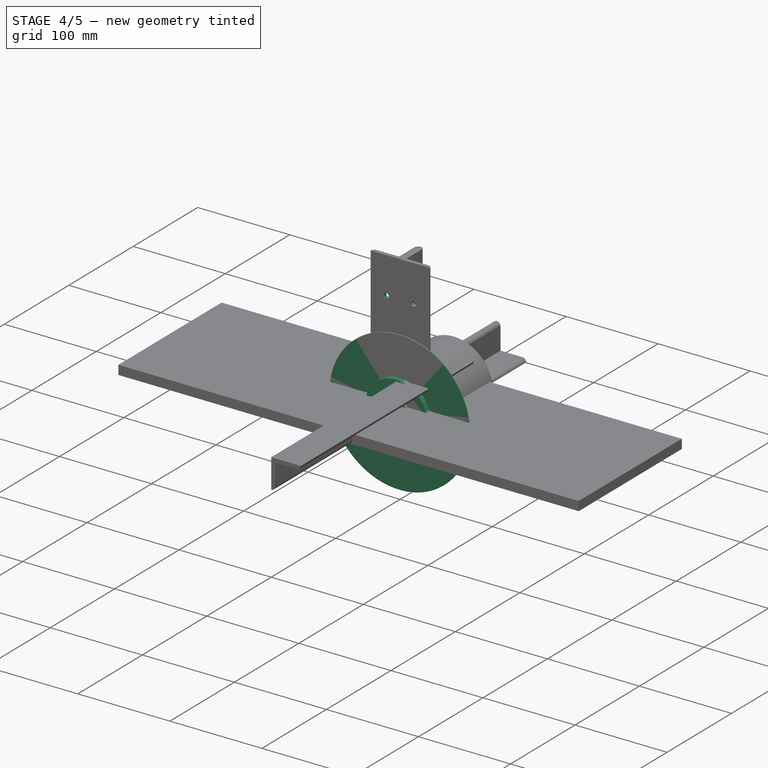
[diagram: stage 4 of 5 — iso view after this stage's code; geometry added in this stage tinted green]
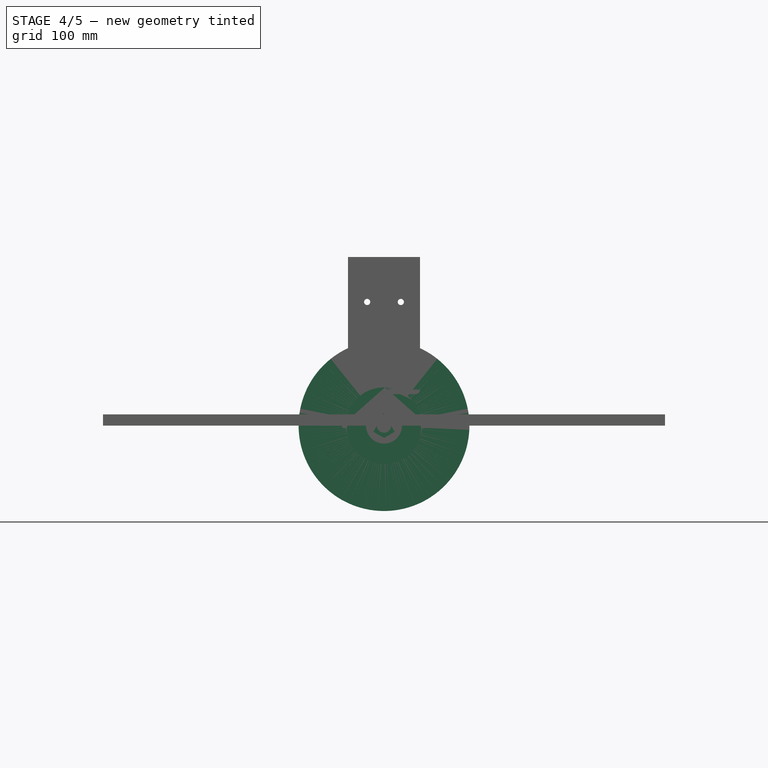
[diagram: stage 4 of 5 — front view after this stage's code; geometry added in this stage tinted green]
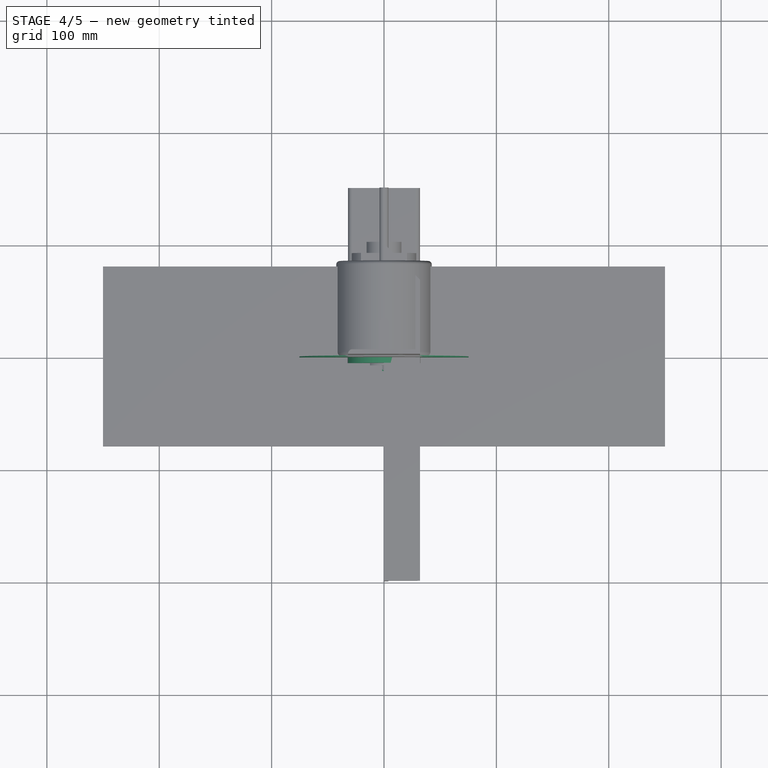
[diagram: stage 4 of 5 — top view after this stage's code; geometry added in this stage tinted green]
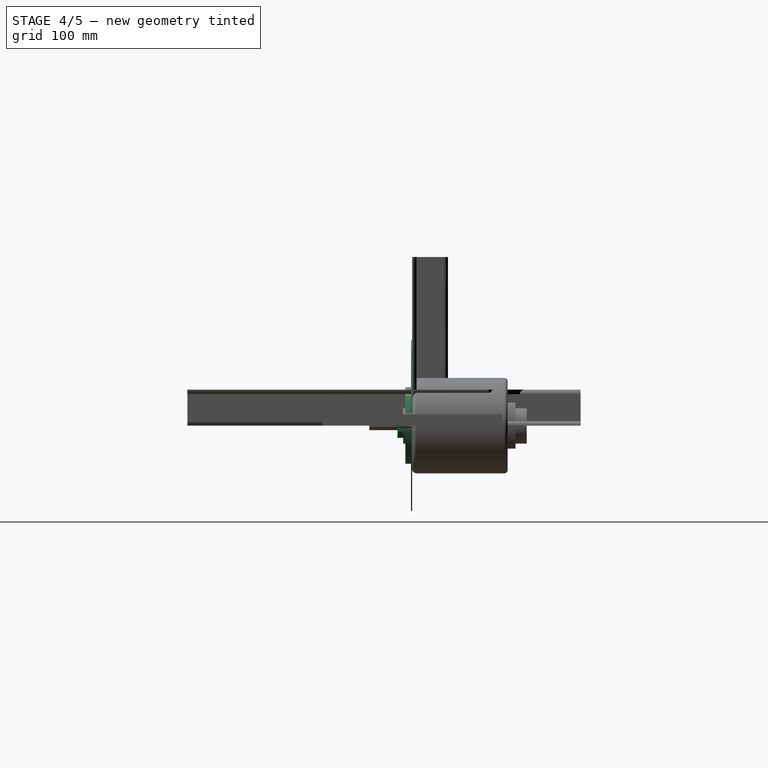
[diagram: stage 4 of 5 — right view after this stage's code; geometry added in this stage tinted green]
FEATURE [PartDesign::CoordinateSystem] LCS_hole1
  AttacherType = Attacher::AttachEngine3D
  MapMode = 11
  Placement = pos=(15,4,110) rot=(0.57735,-0.57735,0.57735;2.0944rad)
  Support = -> [Pocket]
FEATURE [App::Link] motor001
  AssemblyType = Asm4EE
  AttachedBy = #LCS_0001
  AttachedTo = Parent Assembly#LCS_Origin
  LinkedObject = -> motor
  expr: Placement = LCS_Origin.Placement * AttachmentOffset * LCS_0001.Placement ^ -1
FEATURE [App::Link] right_bracket  label="right_bracket001"
  AssemblyType = Asm4EE
  AttachedBy = #LCS_hole1
  AttachedTo = motor001#LCS_fastening2
  LinkPlacement = pos=(-50,-4,-110) rot=(0,0,1;0rad)
  LinkedObject = -> Part
  Placement = pos=(-50,-4,-110) rot=(0,0,1;0rad)
  expr: Placement = motor001.Placement * LCS_fastening2.Placement * AttachmentOffset * LCS_hole1.Placement ^ -1
FEATURE [Sketcher::SketchObject] Sketch012
  ExternalGeometry = -> [Pad004]
  FullyConstrained = true
  MapMode = 5
  Placement = pos=(0,0,0) rot=(1,0,0;1.5708rad)
  Support = -> [Pad004]
  sketch-geometry (1):
    g0: Circle CenterX=-15 CenterY=110 CenterZ=0 NormalX=0 NormalY=0 NormalZ=1 AngleXU=0 Radius=2.75
  constraints (3):
    c: Diameter(g0) = 5.5
    c: DistanceY(g0,g-3) = 40
    c: DistanceX(g0,g-3) = 15
FEATURE [PartDesign::Pocket] Pocket001
  BaseFeature = -> Pad004
  Length = 5
  Length2 = 100
  Profile = -> Sketch012
  Type = 1
FEATURE [Sketcher::SketchObject] Sketch016
  FullyConstrained = true
  MapMode = 5
  Placement = pos=(0,0,0) rot=(1,0,0;1.5708rad)
  Support = -> [XZ_Plane014]
  sketch-geometry (1):
    g0: Circle CenterX=0 CenterY=0 CenterZ=0 NormalX=0 NormalY=0 NormalZ=1 AngleXU=0 Radius=34
  constraints (2):
    c: Coincident(g0,g-1)
    c: Diameter(g0) = 68
FEATURE [PartDesign::Pad] Pad013
  Direction = (1,1,1)
  Length = 6
  Length2 = 100
  Placement = pos=(0,0,0) rot=(1,0,0;1.5708rad)
  Profile = -> Sketch016
  Type = 0
FEATURE [PartDesign::Body] Body005
  Group = -> [Sketch016,Pad013,Sketch017,Pad014,Sketch018,Pad015,Sketch019,Pocket003]
  Origin = -> Origin014
  Tip = -> Pocket003
FEATURE [PartDesign::CoordinateSystem] LCS_1
  AttacherType = Attacher::AttachEngine3D
  MapMode = 11
  Placement = pos=(0,0,0) rot=(0.57735,-0.57735,-0.57735;4.18879rad)
  Support = -> [Pocket003]
FEATURE [PartDesign::CoordinateSystem] LCS_2
  AttacherType = Attacher::AttachEngine3D
  MapMode = 11
  Placement = pos=(0,0,0) rot=(0.57735,-0.57735,-0.57735;4.18879rad)
  Support = -> [Pad012]
FEATURE [PartDesign::CoordinateSystem] LCS_3
  AttacherType = Attacher::AttachEngine3D
  MapMode = 11
  Placement = pos=(0,-8,4e-15) rot=(0.57735,-0.57735,0.57735;2.0944rad)
FEATURE [App::Part] motor
  Group = -> [LCS_0001,Body003,LCS_fastening1,LCS_fastening2,Sketch005,Pad005,Fillet,Sketch006,Fillet001,Pad006,Sketch007,Pad007,Sketch008,Pad008,Sketch009,Pad009,Sketch010,Pad010,LCS_3]
  Origin = -> Origin007
FEATURE [App::Link] adapter  label="adapter001"
  AssemblyType = Asm4EE
  AttachedBy = #LCS_2
  AttachedTo = motor001#LCS_3
  AttachmentOffset = pos=(0,0,0) rot=(1,0,0;3.14159rad)
  LinkPlacement = pos=(0,-8,4e-15) rot=(0,1,0;3.14159rad)
  LinkedObject = -> Part002
  Placement = pos=(0,-8,4e-15) rot=(0,1,0;3.14159rad)
  expr: Placement = motor001.Placement * LCS_3.Placement * AttachmentOffset * LCS_2.Placement ^ -1
FEATURE [PartDesign::CoordinateSystem] LCS_4
  AttacherType = Attacher::AttachEngine3D
  MapMode = 11
  Placement = pos=(0,-32,3.6e-14) rot=(0.57735,-0.57735,0.57735;2.0944rad)
  Support = -> [Pad012]
FEATURE [App::Part] Part002  label="adapter"
  Group = -> [Body004,Sketch014,Pad011,Sketch013,Sketch015,Pocket002,Pad012,LCS_2,LCS_4]
  Origin = -> Origin009
FEATURE [App::Link] platform  label="platform001"
  AssemblyType = Asm4EE
  AttachedBy = #LCS_1
  AttachedTo = adapter#LCS_4
  AttachmentOffset = pos=(0,0,0) rot=(1,0,0;3.14159rad)
  LinkPlacement = pos=(-7.1e-15,-40,-3.6e-15) rot=(0,0,1;0rad)
  LinkedObject = -> Part003
  Placement = pos=(-7.1e-15,-40,-3.6e-15) rot=(0,0,1;0rad)
  expr: Placement = adapter.Placement * LCS_4.Placement * AttachmentOffset * LCS_1.Placement ^ -1
FEATURE [PartDesign::Body] Body006
  Origin = -> Origin016
FEATURE [Sketcher::SketchObject] Sketch020
  FullyConstrained = true
  MapMode = 5
  Placement = pos=(0,0,0) rot=(1,0,0;1.5708rad)
  Support = -> [XZ_Plane016]
  sketch-geometry (1):
    g0: Circle CenterX=0 CenterY=0 CenterZ=0 NormalX=0 NormalY=0 NormalZ=1 AngleXU=0 Radius=76
  constraints (2):
    c: Coincident(g0,g-1)
    c: Diameter(g0) = 152
FEATURE [PartDesign::Pad] Pad016
  Direction = (1,1,1)
  Length = 1
  Length2 = 100
  Placement = pos=(0,0,0) rot=(1,0,0;1.5708rad)
  Profile = -> Sketch020
  Type = 0
FEATURE [Sketcher::SketchObject] Sketch021
  FullyConstrained = true
  MapMode = 5
  Placement = pos=(0,0,0) rot=(-1,0,0;1.5708rad)
  Support = -> [Pad016]
  sketch-geometry (1):
    g0: Circle CenterX=0 CenterY=0 CenterZ=0 NormalX=0 NormalY=0 NormalZ=1 AngleXU=0 Radius=6.35
  constraints (2):
    c: Coincident(g0,g-1)
    c: Diameter(g0) = 12.7
FEATURE [PartDesign::Pocket] Pocket004
  BaseFeature = -> Pad016
  Length = 5
  Length2 = 100
  Placement = pos=(0,0,0) rot=(1,0,0;1.5708rad)
  Profile = -> Sketch021
  Type = 1
FEATURE [PartDesign::CoordinateSystem] LCS_5
  AttacherType = Attacher::AttachEngine3D
  MapMode = 11
  Placement = pos=(0,0,0) rot=(0.57735,-0.57735,-0.57735;4.18879rad)
  Support = -> [Pocket004]
FEATURE [PartDesign::CoordinateSystem] LCS_6
  AttacherType = Attacher::AttachEngine3D
  MapMode = 11
  Placement = pos=(0,-10,1.55e-14) rot=(0.57735,-0.57735,-0.57735;4.18879rad)
  Support = -> [Pocket003]
FEATURE [App::Part] Part003  label="platform"
  Group = -> [Body005,LCS_1,LCS_6]
  Origin = -> Origin013
FEATURE [App::Link] disc  label="disc001"
  AssemblyType = Asm4EE
  AttachedBy = #LCS_5
  AttachedTo = platform#LCS_6
  LinkPlacement = pos=(-9.9e-15,-50,2.5e-15) rot=(0,0,1;0rad)
  LinkedObject = -> Part004
  Placement = pos=(-9.9e-15,-50,2.5e-15) rot=(0,0,1;0rad)
  expr: Placement = platform.Placement * LCS_6.Placement * AttachmentOffset * LCS_5.Placement ^ -1
FEATURE [PartDesign::Body] Body007
  Origin = -> Origin018
FEATURE [Sketcher::SketchObject] Sketch022
  FullyConstrained = true
  MapMode = 5
  Placement = pos=(0,0,0) rot=(1,0,0;1.5708rad)
  Support = -> [XZ_Plane018]
  sketch-geometry (2):
    g0: Circle CenterX=0 CenterY=0 CenterZ=0 NormalX=0 NormalY=0 NormalZ=1 AngleXU=0 Radius=18.5
    g1: Circle CenterX=0 CenterY=0 CenterZ=0 NormalX=0 NormalY=0 NormalZ=1 AngleXU=0 Radius=6.5
  constraints (4):
    c: Coincident(g0,g-1)
    c: Diameter(g0) = 37
    c: Coincident(g1,g0)
    c: Diameter(g1) = 13
FEATURE [PartDesign::Pad] Pad017
  Direction = (1,1,1)
  Length = 3
  Length2 = 100
  Placement = pos=(0,0,0) rot=(1,0,0;1.5708rad)
  Profile = -> Sketch022
  Type = 0
FEATURE [Sketcher::SketchObject] Sketch023
  FullyConstrained = true
  MapMode = 5
  Placement = pos=(0,-3,7e-16) rot=(1,0,0;1.5708rad)
  Support = -> [Pad017]
  sketch-geometry (8):
    g0: LineSegment StartX=9.5 StartY=-5.48483 StartZ=0 EndX=9.5 EndY=5.48483 EndZ=0
    g1: LineSegment StartX=9.5 StartY=5.48483 StartZ=0 EndX=-1.8e-15 EndY=10.9697 EndZ=0
    g2: LineSegment StartX=-1.8e-15 StartY=10.9697 StartZ=0 EndX=-9.5 EndY=5.48483 EndZ=0
    g3: LineSegment StartX=-9.5 StartY=5.48483 StartZ=0 EndX=-9.5 EndY=-5.48483 EndZ=0
    g4: LineSegment StartX=-9.5 StartY=-5.48483 StartZ=0 EndX=0 EndY=-10.9697 EndZ=0
    g5: LineSegment StartX=0 StartY=-10.9697 StartZ=0 EndX=9.5 EndY=-5.48483 EndZ=0
    g6: Circle CenterX=0 CenterY=0 CenterZ=0 NormalX=0 NormalY=0 NormalZ=1 AngleXU=0 Radius=10.9697
    g7: Circle CenterX=0 CenterY=0 CenterZ=0 NormalX=0 NormalY=0 NormalZ=1 AngleXU=0 Radius=6.35
  constraints (18):
    c: Coincident(g0,g1)
    c: Coincident(g1,g2)
    c: Coincident(g2,g3)
    c: Coincident(g3,g4)
    c: Coincident(g4,g5)
    c: Coincident(g5,g0)
    c: Equal(g0, g1-g5) x5
    c: PointOnObject(g0,g6)
    c: PointOnObject(g1,g6)
    c: PointOnObject(g2,g6)
    c: PointOnObject(g3,g6)
    c: PointOnObject(g4,g6)
    c: PointOnObject(g5,g6)
    c: Coincident(g6,g-1)
    c: PointOnObject(g4,g-2)
    c: DistanceX(g2,g0) = 19
    c: Coincident(g7,g-1)
    c: Diameter(g7) = 12.7
FEATURE [PartDesign::Pad] Pad018
  Direction = (1,1,1)
  Length = 10
  Length2 = 100
  Placement = pos=(0,0,0) rot=(1,0,0;1.5708rad)
  Profile = -> Sketch023
  Type = 0
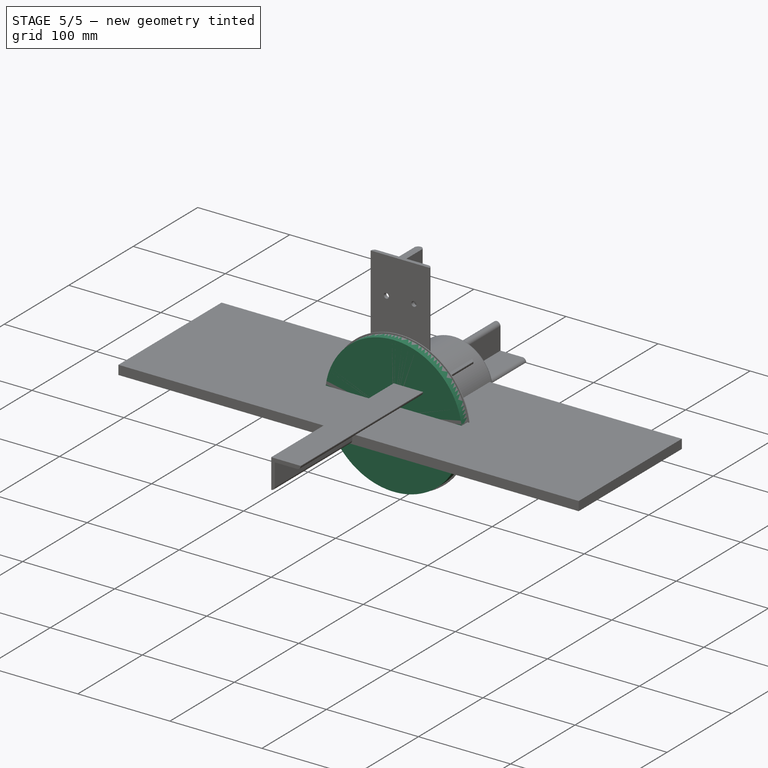
[diagram: stage 5 of 5 — iso view after this stage's code; geometry added in this stage tinted green]
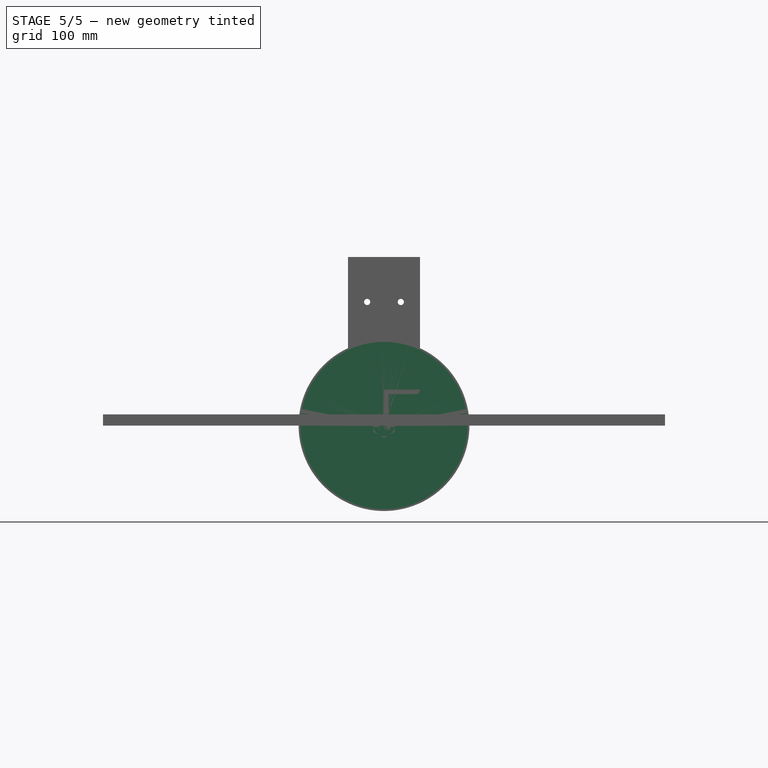
[diagram: stage 5 of 5 — front view after this stage's code; geometry added in this stage tinted green]
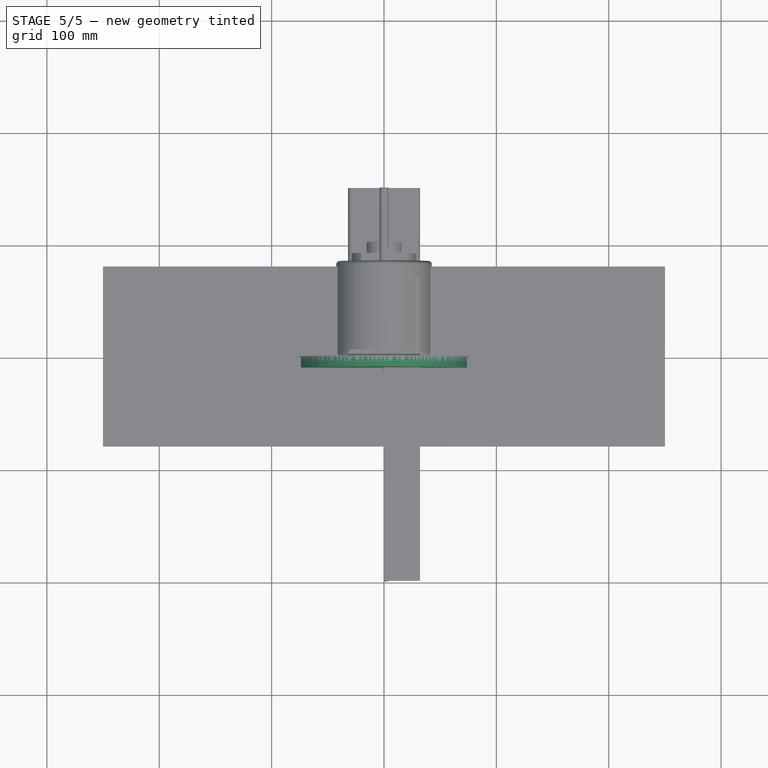
[diagram: stage 5 of 5 — top view after this stage's code; geometry added in this stage tinted green]
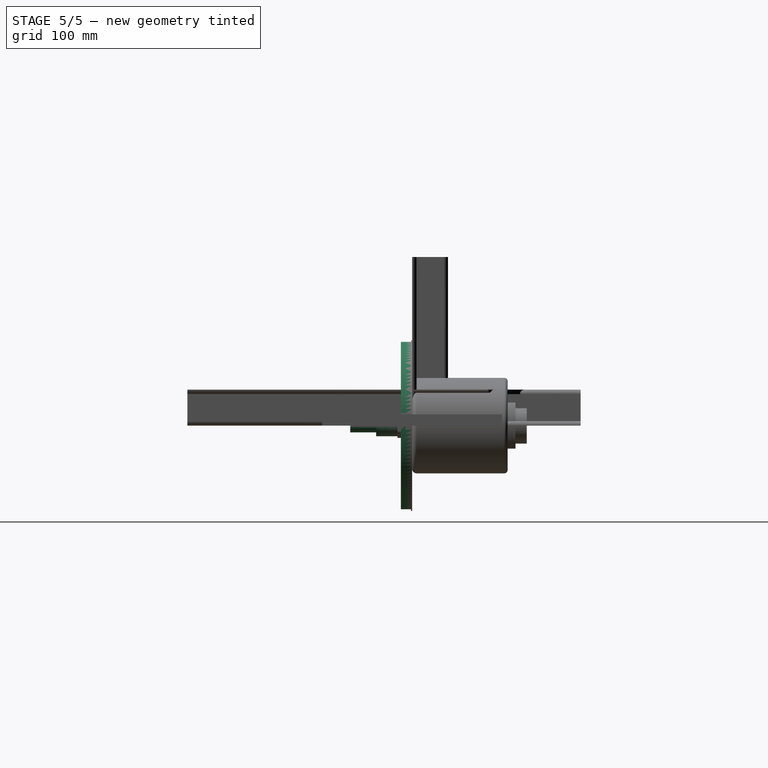
[diagram: stage 5 of 5 — right view after this stage's code; geometry added in this stage tinted green]
FEATURE [PartDesign::CoordinateSystem] LCS_hole
  AttacherType = Attacher::AttachEngine3D
  MapMode = 11
  Placement = pos=(-15,4,110) rot=(0.57735,-0.57735,0.57735;2.0944rad)
  Support = -> [Pocket001]
FEATURE [App::Link] left_bracket  label="left_bracket001"
  AssemblyType = Asm4EE
  AttachedBy = #LCS_hole
  AttachedTo = motor001#LCS_fastening1
  LinkPlacement = pos=(50,-4,-110) rot=(0,0,1;0rad)
  LinkedObject = -> Part001
  Placement = pos=(50,-4,-110) rot=(0,0,1;0rad)
  expr: Placement = motor001.Placement * LCS_fastening1.Placement * AttachmentOffset * LCS_hole.Placement ^ -1
FEATURE [PartDesign::Body] Body004
  Origin = -> Origin012
FEATURE [Sketcher::SketchObject] Sketch013
  FullyConstrained = true
  MapMode = 5
  Placement = pos=(0,0,0) rot=(1,0,0;1.5708rad)
  Support = -> [XZ_Plane012]
  sketch-geometry (1):
    g0: Circle CenterX=0 CenterY=0 CenterZ=0 NormalX=0 NormalY=0 NormalZ=1 AngleXU=0 Radius=9.5
  constraints (2):
    c: Coincident(g0,g-1)
    c: Diameter(g0) = 19
FEATURE [PartDesign::Pad] Pad011
  Direction = (1,1,1)
  Length = 32
  Length2 = 100
  Placement = pos=(0,0,0) rot=(1,0,0;1.5708rad)
  Profile = -> Sketch013
  Type = 0
FEATURE [Sketcher::SketchObject] Sketch014
  FullyConstrained = true
  MapMode = 5
  Placement = pos=(0,0,0) rot=(-1,0,0;1.5708rad)
  Support = -> [Pad011]
  sketch-geometry (1):
    g0: Circle CenterX=0 CenterY=0 CenterZ=0 NormalX=0 NormalY=0 NormalZ=1 AngleXU=0 Radius=4
  constraints (2):
    c: Coincident(g0,g-1)
    c: Diameter(g0) = 8
FEATURE [PartDesign::Pocket] Pocket002
  Length = 30
  Length2 = 100
  Placement = pos=(0,0,0) rot=(1,0,0;1.5708rad)
  Profile = -> Sketch014
  Type = 0
FEATURE [Sketcher::SketchObject] Sketch015
  FullyConstrained = true
  MapMode = 5
  Placement = pos=(0,-32,7e-15) rot=(1,0,0;1.5708rad)
  Support = -> [Pocket002]
  sketch-geometry (1):
    g0: Circle CenterX=0 CenterY=0 CenterZ=0 NormalX=0 NormalY=0 NormalZ=1 AngleXU=0 Radius=6
  constraints (2):
    c: Coincident(g0,g-1)
    c: Diameter(g0) = 12
FEATURE [PartDesign::Pad] Pad012
  Direction = (1,1,1)
  Length = 23
  Length2 = 100
  Placement = pos=(0,0,0) rot=(1,0,0;1.5708rad)
  Profile = -> Sketch015
  Type = 0
FEATURE [Sketcher::SketchObject] Sketch017
  FullyConstrained = true
  MapMode = 5
  Placement = pos=(0,-6,1.3e-15) rot=(1,0,0;1.5708rad)
  Support = -> [Pad013]
  sketch-geometry (1):
    g0: Circle CenterX=0 CenterY=0 CenterZ=0 NormalX=0 NormalY=0 NormalZ=1 AngleXU=0 Radius=74.5
  constraints (2):
    c: Coincident(g0,g-1)
    c: Diameter(g0) = 149
FEATURE [PartDesign::Pad] Pad014
  BaseFeature = -> Pad013
  Direction = (1,1,1)
  Length = 4
  Length2 = 100
  Placement = pos=(0,0,0) rot=(1,0,0;1.5708rad)
  Profile = -> Sketch017
  Type = 0
FEATURE [Sketcher::SketchObject] Sketch018
  FullyConstrained = true
  MapMode = 5
  Placement = pos=(0,-6,4.6e-15) rot=(-1,0,0;1.5708rad)
  Support = -> [Pad014]
  sketch-geometry (2):
    g0: Circle CenterX=0 CenterY=0 CenterZ=0 NormalX=0 NormalY=0 NormalZ=1 AngleXU=0 Radius=65
    g1: Circle CenterX=0 CenterY=0 CenterZ=0 NormalX=0 NormalY=0 NormalZ=1 AngleXU=0 Radius=74.5
  constraints (4):
    c: Coincident(g0,g-1)
    c: Coincident(g1,g0)
    c: Diameter(g1) = 149
    c: Diameter(g0) = 130
FEATURE [PartDesign::Pad] Pad015
  BaseFeature = -> Pad014
  Direction = (1,1,1)
  Length = 6
  Length2 = 100
  Placement = pos=(0,0,0) rot=(1,0,0;1.5708rad)
  Profile = -> Sketch018
  Type = 0
FEATURE [Sketcher::SketchObject] Sketch019
  FullyConstrained = true
  MapMode = 5
  Placement = pos=(0,0,0) rot=(-1,0,0;1.5708rad)
  Support = -> [Pad015]
  sketch-geometry (1):
    g0: Circle CenterX=0 CenterY=0 CenterZ=0 NormalX=0 NormalY=0 NormalZ=1 AngleXU=0 Radius=6.35
  constraints (2):
    c: Coincident(g0,g-1)
    c: Diameter(g0) = 12.7
FEATURE [PartDesign::Pocket] Pocket003
  BaseFeature = -> Pad015
  Length = 5
  Length2 = 100
  Placement = pos=(0,0,0) rot=(1,0,0;1.5708rad)
  Profile = -> Sketch019
  Type = 1
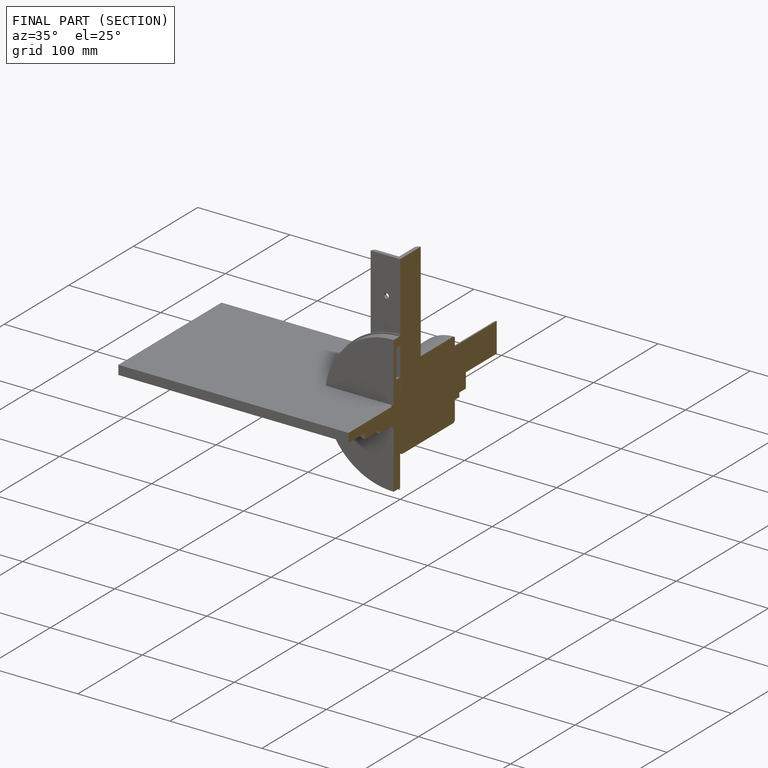
[diagram: finished part — half-section view (interior)]
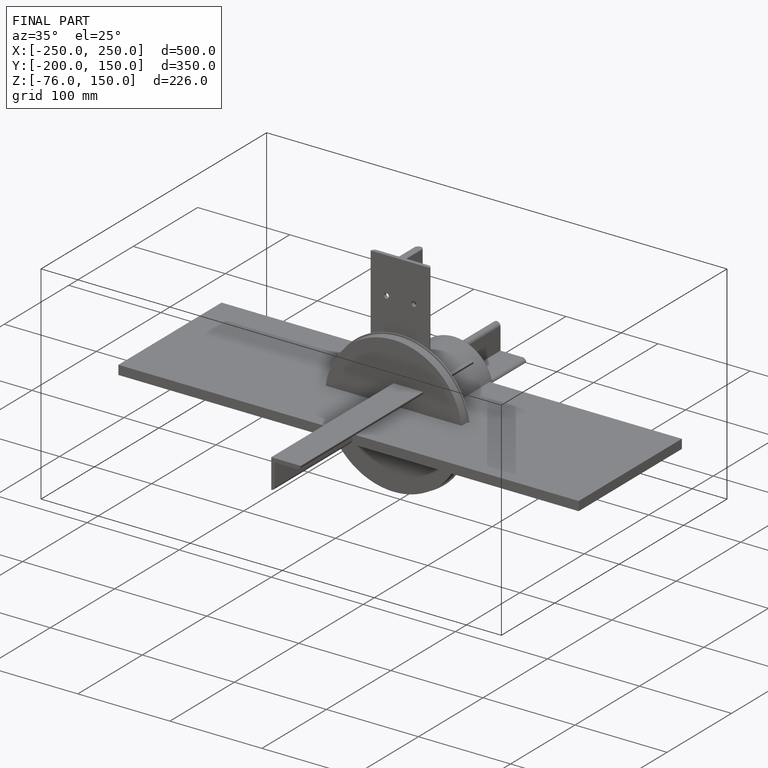
[diagram: finished part — iso view with bounding-box wireframe]
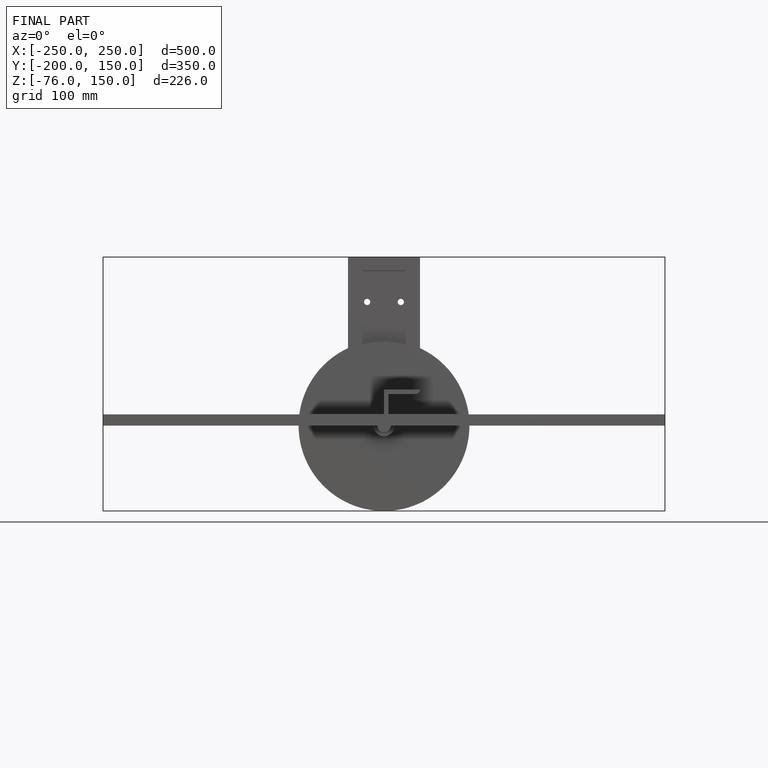
[diagram: finished part — front view with bounding-box wireframe]
